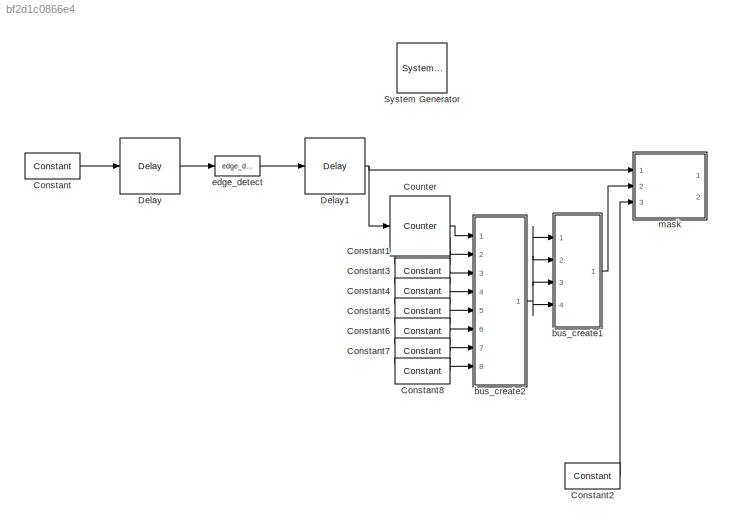
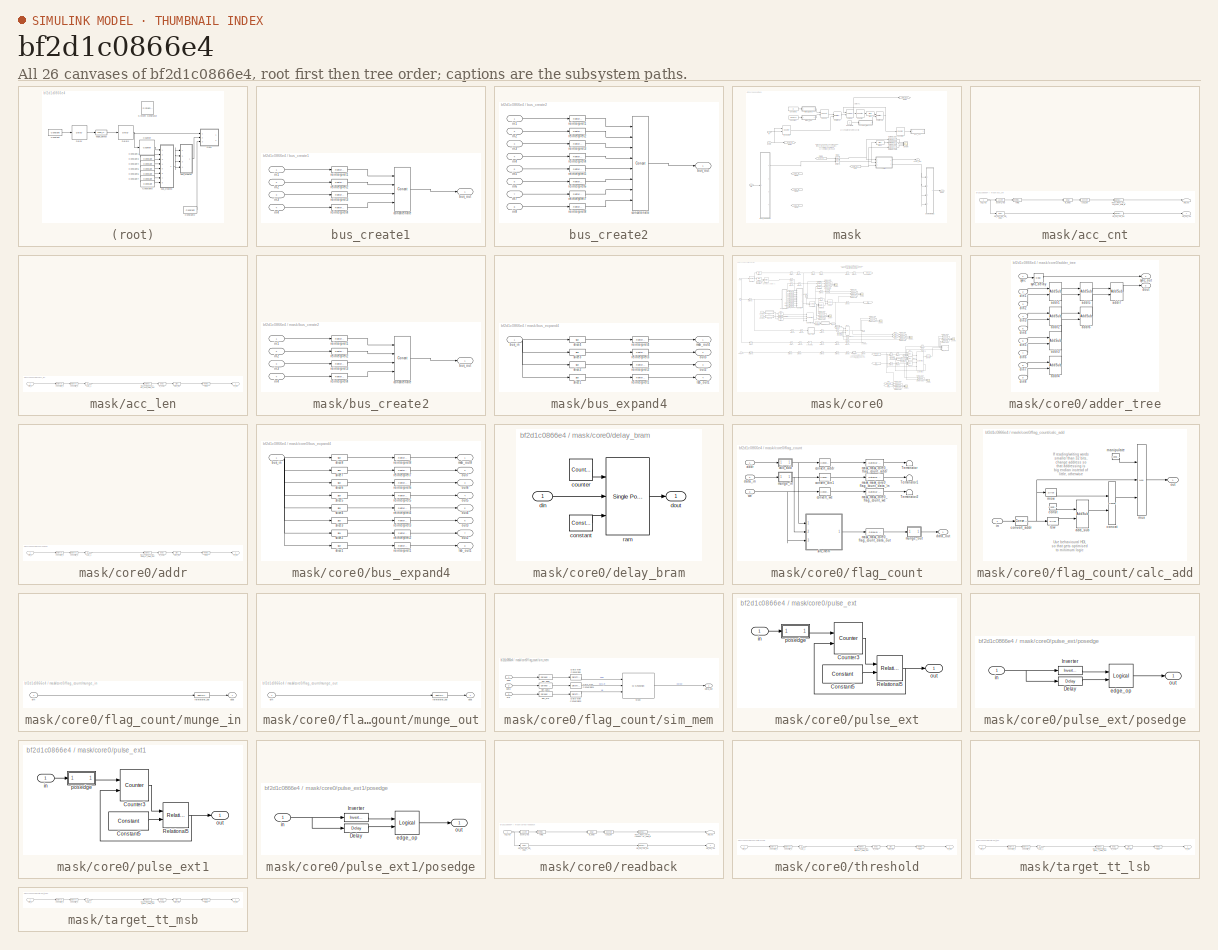
[diagram: thumbnail index - all 26 canvases of the model, root first then tree order]
MODEL slx_bf2d1c0866e4
KIND model
CONFIG AbsTol = auto
CONFIG EnableMultiTasking = off
CONFIG FixedStep = auto
CONFIG MaxStep = auto
CONFIG MinStep = auto
CONFIG RelTol = 1e-3
CONFIG SampleTimeConstraint = Unconstrained
CONFIG Solver = VariableStepAuto
CONFIG SolverName = VariableStepAuto
CONFIG StartTime = 0.0
CONFIG StopTime = 512*16*12
BLOCK [Reference]  System Generator  REF=xbsIndex_r4/ System Generator
  AttributesFormatString = System\nGenerator
  Ports = []
  SourceBlock = xbsIndex_r4/ System Generator
  SourceType = Xilinx System Generator Block
  Tag = genX
  UserDataPersistent = on
BLOCK [Reference] Constant  REF=xbsIndex_r4/Constant
  Ports = [0, 1]
  SourceBlock = xbsIndex_r4/Constant
  SourceType = Xilinx Constant Block Block
BLOCK [Reference] Constant1  REF=xbsIndex_r4/Constant
  Ports = [0, 1]
  SourceBlock = xbsIndex_r4/Constant
  SourceType = Xilinx Constant Block Block
BLOCK [Reference] Constant2  REF=xbsIndex_r4/Constant
  Ports = [0, 1]
  SourceBlock = xbsIndex_r4/Constant
  SourceType = Xilinx Constant Block Block
BLOCK [Reference] Constant3  REF=xbsIndex_r4/Constant
  Ports = [0, 1]
  SourceBlock = xbsIndex_r4/Constant
  SourceType = Xilinx Constant Block Block
BLOCK [Reference] Constant4  REF=xbsIndex_r4/Constant
  Ports = [0, 1]
  SourceBlock = xbsIndex_r4/Constant
  SourceType = Xilinx Constant Block Block
BLOCK [Reference] Constant5  REF=xbsIndex_r4/Constant
  Ports = [0, 1]
  SourceBlock = xbsIndex_r4/Constant
  SourceType = Xilinx Constant Block Block
BLOCK [Reference] Constant6  REF=xbsIndex_r4/Constant
  Ports = [0, 1]
  SourceBlock = xbsIndex_r4/Constant
  SourceType = Xilinx Constant Block Block
BLOCK [Reference] Constant7  REF=xbsIndex_r4/Constant
  Ports = [0, 1]
  SourceBlock = xbsIndex_r4/Constant
  SourceType = Xilinx Constant Block Block
BLOCK [Reference] Constant8  REF=xbsIndex_r4/Constant
  Ports = [0, 1]
  SourceBlock = xbsIndex_r4/Constant
  SourceType = Xilinx Constant Block Block
BLOCK [Reference] Counter  REF=xbsIndex_r4/Counter
  Ports = [1, 1]
  SourceBlock = xbsIndex_r4/Counter
  SourceType = Xilinx Counter Block
BLOCK [Reference] Delay  REF=xbsIndex_r4/Delay
  Ports = [1, 1]
  SourceBlock = xbsIndex_r4/Delay
  SourceType = Xilinx Delay Block
BLOCK [Reference] Delay1  REF=xbsIndex_r4/Delay
  Ports = [1, 1]
  SourceBlock = xbsIndex_r4/Delay
  SourceType = Xilinx Delay Block
BLOCK [SubSystem] bus_create1
  AncestorBlock = casper_library_flow_control/bus_create
  Ports = [4, 1]
  RequestExecContextInheritance = off
  UserDataPersistent = on
BLOCK [Outport] bus_create1/bus_out
  IconDisplay = Port number
BLOCK [Reference] bus_create1/concatenate  REF=xbsIndex_r4/Concat
  Ports = [4, 1]
  SourceBlock = xbsIndex_r4/Concat
  SourceType = Xilinx Bus Concatenator Block
BLOCK [Inport] bus_create1/in1
  IconDisplay = Port number
BLOCK [Inport] bus_create1/in2
  IconDisplay = Port number
  Port = 2
BLOCK [Inport] bus_create1/in3
  IconDisplay = Port number
  Port = 3
BLOCK [Inport] bus_create1/in4
  IconDisplay = Port number
  Port = 4
BLOCK [Reference] bus_create1/reinterpret1  REF=xbsIndex_r4/Reinterpret
  Ports = [1, 1]
  SourceBlock = xbsIndex_r4/Reinterpret
  SourceType = Xilinx Type Reinterpreter Block
BLOCK [Reference] bus_create1/reinterpret2  REF=xbsIndex_r4/Reinterpret
  Ports = [1, 1]
  SourceBlock = xbsIndex_r4/Reinterpret
  SourceType = Xilinx Type Reinterpreter Block
BLOCK [Reference] bus_create1/reinterpret3  REF=xbsIndex_r4/Reinterpret
  Ports = [1, 1]
  SourceBlock = xbsIndex_r4/Reinterpret
  SourceType = Xilinx Type Reinterpreter Block
BLOCK [Reference] bus_create1/reinterpret4  REF=xbsIndex_r4/Reinterpret
  Ports = [1, 1]
  SourceBlock = xbsIndex_r4/Reinterpret
  SourceType = Xilinx Type Reinterpreter Block
BLOCK [SubSystem] bus_create2
  AncestorBlock = casper_library_flow_control/bus_create
  Ports = [8, 1]
  RequestExecContextInheritance = off
  UserDataPersistent = on
BLOCK [Outport] bus_create2/bus_out
  IconDisplay = Port number
BLOCK [Reference] bus_create2/concatenate  REF=xbsIndex_r4/Concat
  Ports = [8, 1]
  SourceBlock = xbsIndex_r4/Concat
  SourceType = Xilinx Bus Concatenator Block
BLOCK [Inport] bus_create2/in1
  IconDisplay = Port number
BLOCK [Inport] bus_create2/in2
  IconDisplay = Port number
  Port = 2
BLOCK [Inport] bus_create2/in3
  IconDisplay = Port number
  Port = 3
BLOCK [Inport] bus_create2/in4
  IconDisplay = Port number
  Port = 4
BLOCK [Inport] bus_create2/in5
  IconDisplay = Port number
  Port = 5
BLOCK [Inport] bus_create2/in6
  IconDisplay = Port number
  Port = 6
BLOCK [Inport] bus_create2/in7
  IconDisplay = Port number
  Port = 7
BLOCK [Inport] bus_create2/in8
  IconDisplay = Port number
  Port = 8
BLOCK [Reference] bus_create2/reinterpret1  REF=xbsIndex_r4/Reinterpret
  Ports = [1, 1]
  SourceBlock = xbsIndex_r4/Reinterpret
  SourceType = Xilinx Type Reinterpreter Block
BLOCK [Reference] bus_create2/reinterpret2  REF=xbsIndex_r4/Reinterpret
  Ports = [1, 1]
  SourceBlock = xbsIndex_r4/Reinterpret
  SourceType = Xilinx Type Reinterpreter Block
BLOCK [Reference] bus_create2/reinterpret3  REF=xbsIndex_r4/Reinterpret
  Ports = [1, 1]
  SourceBlock = xbsIndex_r4/Reinterpret
  SourceType = Xilinx Type Reinterpreter Block
BLOCK [Reference] bus_create2/reinterpret4  REF=xbsIndex_r4/Reinterpret
  Ports = [1, 1]
  SourceBlock = xbsIndex_r4/Reinterpret
  SourceType = Xilinx Type Reinterpreter Block
BLOCK [Reference] bus_create2/reinterpret5  REF=xbsIndex_r4/Reinterpret
  Ports = [1, 1]
  SourceBlock = xbsIndex_r4/Reinterpret
  SourceType = Xilinx Type Reinterpreter Block
BLOCK [Reference] bus_create2/reinterpret6  REF=xbsIndex_r4/Reinterpret
  Ports = [1, 1]
  SourceBlock = xbsIndex_r4/Reinterpret
  SourceType = Xilinx Type Reinterpreter Block
BLOCK [Reference] bus_create2/reinterpret7  REF=xbsIndex_r4/Reinterpret
  Ports = [1, 1]
  SourceBlock = xbsIndex_r4/Reinterpret
  SourceType = Xilinx Type Reinterpreter Block
BLOCK [Reference] bus_create2/reinterpret8  REF=xbsIndex_r4/Reinterpret
  Ports = [1, 1]
  SourceBlock = xbsIndex_r4/Reinterpret
  SourceType = Xilinx Type Reinterpreter Block
BLOCK [Reference] edge_detect  REF=casper_library_misc/edge_detect  (lib defined in mdl_357510c33b49, mdl_57b5f564ae26, +4 more)
  AttributesFormatString = rising edges\nactive high
  Ports = [1, 1]
  SourceBlock = casper_library_misc/edge_detect
  SourceProductName = CASPER DSP Blockset
  SourceType = edge_detect
  UserDataPersistent = on
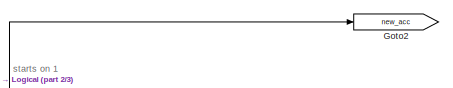
[diagram: mask - part 1/3, top right region]
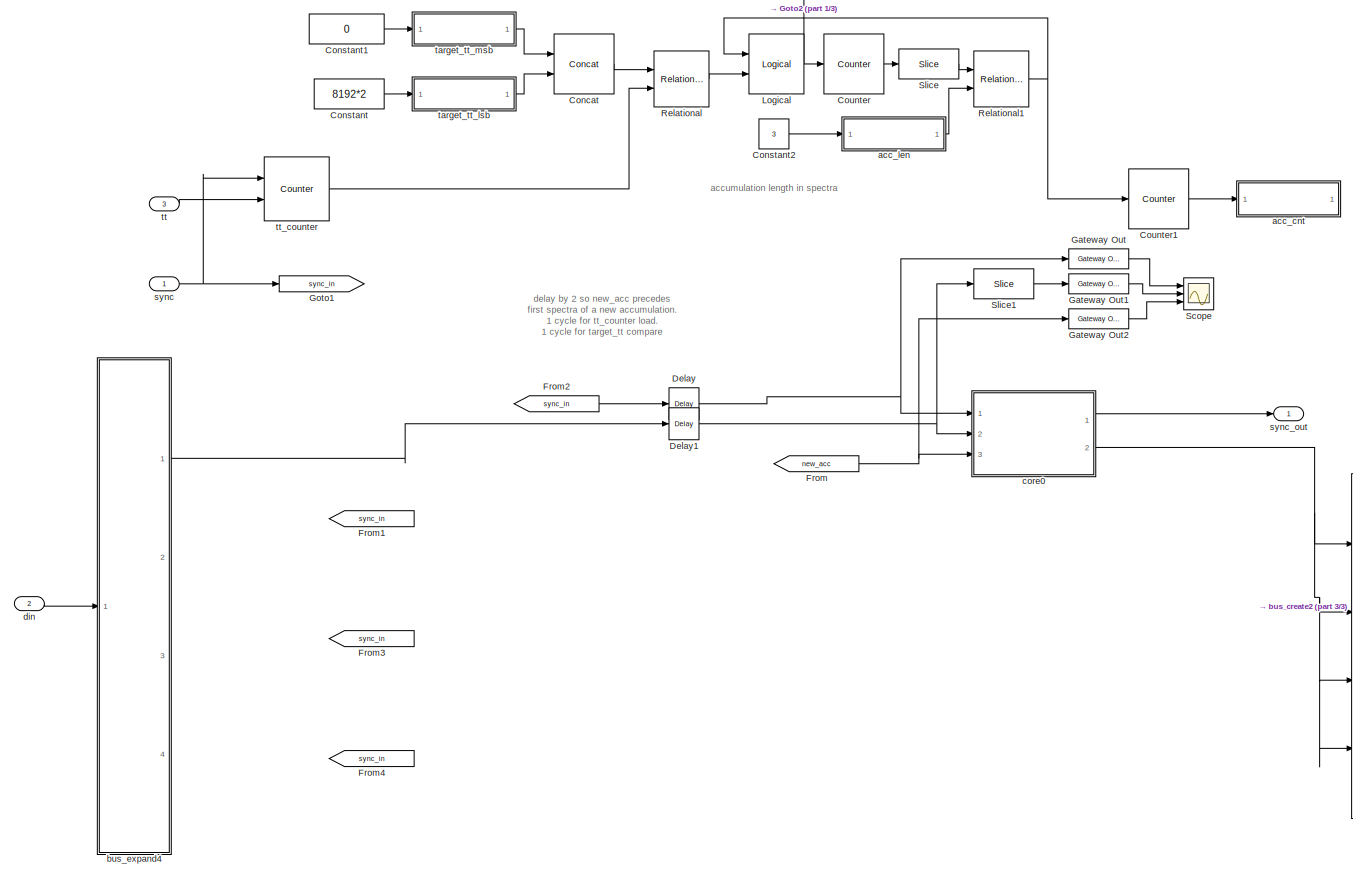
[diagram: mask - part 2/3, most of the canvas]
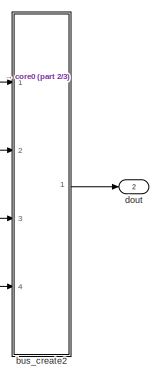
[diagram: mask - part 3/3, bottom right region]
BLOCK [SubSystem] mask
  Ports = [3, 2]
  RequestExecContextInheritance = off
BLOCK [Reference] mask/Concat  REF=xbsIndex_r4/Concat
  Ports = [2, 1]
  SourceBlock = xbsIndex_r4/Concat
  SourceType = Xilinx Bus Concatenator Block
BLOCK [Constant] mask/Constant
  Value = 8192*2
BLOCK [Constant] mask/Constant1
  Value = 0
BLOCK [Constant] mask/Constant2
  Value = 3
BLOCK [Reference] mask/Counter  REF=xbsIndex_r4/Counter
  Ports = [1, 1]
  SourceBlock = xbsIndex_r4/Counter
  SourceType = Xilinx Counter Block
BLOCK [Reference] mask/Counter1  REF=xbsIndex_r4/Counter
  Ports = [1, 1]
  SourceBlock = xbsIndex_r4/Counter
  SourceType = Xilinx Counter Block
BLOCK [Reference] mask/Delay  REF=xbsIndex_r4/Delay
  Ports = [1, 1]
  SourceBlock = xbsIndex_r4/Delay
  SourceType = Xilinx Delay Block
BLOCK [Reference] mask/Delay1  REF=xbsIndex_r4/Delay
  Ports = [1, 1]
  SourceBlock = xbsIndex_r4/Delay
  SourceType = Xilinx Delay Block
BLOCK [From] mask/From
  GotoTag = new_acc
BLOCK [From] mask/From1
  GotoTag = sync_in
BLOCK [From] mask/From2
  GotoTag = sync_in
BLOCK [From] mask/From3
  GotoTag = sync_in
BLOCK [From] mask/From4
  GotoTag = sync_in
BLOCK [Reference] mask/Gateway Out  REF=xbsIndex_r4/Gateway Out
  Commented = on
  Ports = [1, 1]
  SourceBlock = xbsIndex_r4/Gateway Out
  SourceType = Xilinx Gateway Out Block
BLOCK [Reference] mask/Gateway Out1  REF=xbsIndex_r4/Gateway Out
  Commented = on
  Ports = [1, 1]
  SourceBlock = xbsIndex_r4/Gateway Out
  SourceType = Xilinx Gateway Out Block
BLOCK [Reference] mask/Gateway Out2  REF=xbsIndex_r4/Gateway Out
  Commented = on
  Ports = [1, 1]
  SourceBlock = xbsIndex_r4/Gateway Out
  SourceType = Xilinx Gateway Out Block
BLOCK [Goto] mask/Goto1
  GotoTag = sync_in
BLOCK [Goto] mask/Goto2
  GotoTag = new_acc
BLOCK [Reference] mask/Logical  REF=xbsIndex_r4/Logical
  Ports = [2, 1]
  SourceBlock = xbsIndex_r4/Logical
  SourceType = Xilinx Logical Block Block
BLOCK [Reference] mask/Relational  REF=xbsIndex_r4/Relational
  Ports = [2, 1]
  SourceBlock = xbsIndex_r4/Relational
  SourceType = Xilinx Arithmetic Relational Operator Block
BLOCK [Reference] mask/Relational1  REF=xbsIndex_r4/Relational
  Ports = [2, 1]
  SourceBlock = xbsIndex_r4/Relational
  SourceType = Xilinx Arithmetic Relational Operator Block
BLOCK [Scope] mask/Scope
  Commented = on
  Floating = off
  NumInputPorts = 3
  Ports = [3]
  ScopeSpecificationString = Simulink.scopes.TimeScopeBlockCfg('CurrentConfiguration', extmgr.ConfigurationSet(extmgr.Configuration('Core','General UI',true),extmgr.Configuration('Core','Source UI',true),extmgr.Configuration('Sources','WiredSimulink',true),extmgr.Configuration('Visuals','Time Domain',true,'SerializedDisplays',{struct('MinYLimReal','-0.125','MaxYLimReal','1.125','YLabelReal','','MinYLimMag','0.00000','MaxYLimM...<+2798ch>
BLOCK [Reference] mask/Slice  REF=xbsIndex_r4/Slice
  Ports = [1, 1]
  SourceBlock = xbsIndex_r4/Slice
  SourceType = Xilinx Bit Slice Extractor Block
BLOCK [Reference] mask/Slice1  REF=xbsIndex_r4/Slice
  Commented = on
  Ports = [1, 1]
  SourceBlock = xbsIndex_r4/Slice
  SourceType = Xilinx Bit Slice Extractor Block
BLOCK [SubSystem] mask/acc_cnt
  AncestorBlock = xps_library/Memory/software_register
  AttributesFormatString = 1output:uf32.0 = 32 bits
  Ports = [1, 1]
  RequestExecContextInheritance = off
  Tag = xps:sw_reg
BLOCK [Reference] mask/acc_cnt/assert_reg  REF=xbsIndex_r4/Assert
  Ports = [1, 1]
  SourceBlock = xbsIndex_r4/Assert
  SourceType = Xilinx Assert Block
BLOCK [Reference] mask/acc_cnt/cast_gw  REF=xbsIndex_r4/Convert
  Ports = [1, 1]
  SourceBlock = xbsIndex_r4/Convert
  SourceType = Xilinx Type Converter Block
BLOCK [Reference] mask/acc_cnt/io_delay  REF=xbsIndex_r4/Delay
  Ports = [1, 1]
  SourceBlock = xbsIndex_r4/Delay
  SourceType = Xilinx Delay Block
BLOCK [Reference] mask/acc_cnt/mask_mask_acc_cnt_user_data_in  REF=xbsIndex_r4/Gateway Out
  Ports = [1, 1]
  SourceBlock = xbsIndex_r4/Gateway Out
  SourceType = Xilinx Gateway Out Block
BLOCK [Inport] mask/acc_cnt/out_reg
  IconDisplay = Port number
BLOCK [Reference] mask/acc_cnt/reint1  REF=xbsIndex_r4/Reinterpret
  Ports = [1, 1]
  SourceBlock = xbsIndex_r4/Reinterpret
  SourceType = Xilinx Type Reinterpreter Block
BLOCK [Terminator] mask/acc_cnt/sim_out
BLOCK [Outport] mask/acc_cnt/sim_out_reg
  IconDisplay = Port number
BLOCK [Reference] mask/acc_cnt/sim_out_reg_gw  REF=xbsIndex_r4/Gateway Out
  Ports = [1, 1]
  SourceBlock = xbsIndex_r4/Gateway Out
  SourceType = Xilinx Gateway Out Block
BLOCK [Reference] mask/acc_cnt/sim_out_reg_sim_delay  REF=xbsIndex_r4/Delay
  Ports = [1, 1]
  SourceBlock = xbsIndex_r4/Delay
  SourceType = Xilinx Delay Block
BLOCK [SubSystem] mask/acc_len
  AncestorBlock = xps_library/Memory/software_register
  AttributesFormatString = 1input:uf32.0 = 32 bits
  Ports = [1, 1]
  RequestExecContextInheritance = off
  Tag = xps:sw_reg
BLOCK [DataTypeConversion] mask/acc_len/convert1_1
  LockScale = on
  OutDataTypeStr = fixdt('ufix32_En0')
  RndMeth = Floor
  SaturateOnIntegerOverflow = off
BLOCK [DataTypeConversion] mask/acc_len/convert2_1
  ConvertRealWorld = Stored Integer (SI)
  LockScale = on
  OutDataTypeStr = fixdt('ufix32_En0')
  RndMeth = Floor
  SaturateOnIntegerOverflow = off
BLOCK [Gain] mask/acc_len/gain_1
  OutDataTypeStr = Inherit: Inherit via internal rule
  ParamDataTypeStr = Inherit: Inherit via internal rule
  SaturateOnIntegerOverflow = off
BLOCK [Outport] mask/acc_len/in_reg
  IconDisplay = Port number
BLOCK [Reference] mask/acc_len/io_delay  REF=xbsIndex_r4/Delay
  Ports = [1, 1]
  SourceBlock = xbsIndex_r4/Delay
  SourceType = Xilinx Delay Block
BLOCK [Reference] mask/acc_len/mask_mask_acc_len_user_data_out  REF=xbsIndex_r4/Gateway In
  Ports = [1, 1]
  SourceBlock = xbsIndex_r4/Gateway In
  SourceType = Xilinx Gateway In Block
BLOCK [Reference] mask/acc_len/reint1  REF=xbsIndex_r4/Reinterpret
  Ports = [1, 1]
  SourceBlock = xbsIndex_r4/Reinterpret
  SourceType = Xilinx Type Reinterpreter Block
BLOCK [Inport] mask/acc_len/sim_1
  IconDisplay = Port number
BLOCK [Reference] mask/acc_len/slice_reg  REF=xbsIndex_r4/Slice
  Ports = [1, 1]
  SourceBlock = xbsIndex_r4/Slice
  SourceType = Xilinx Bit Slice Extractor Block
BLOCK [SubSystem] mask/bus_create2
  AncestorBlock = casper_library_flow_control/bus_create
  Ports = [4, 1]
  RequestExecContextInheritance = off
  UserDataPersistent = on
BLOCK [Outport] mask/bus_create2/bus_out
  IconDisplay = Port number
BLOCK [Reference] mask/bus_create2/concatenate  REF=xbsIndex_r4/Concat
  Ports = [4, 1]
  SourceBlock = xbsIndex_r4/Concat
  SourceType = Xilinx Bus Concatenator Block
BLOCK [Inport] mask/bus_create2/in1
  IconDisplay = Port number
BLOCK [Inport] mask/bus_create2/in2
  IconDisplay = Port number
  Port = 2
BLOCK [Inport] mask/bus_create2/in3
  IconDisplay = Port number
  Port = 3
BLOCK [Inport] mask/bus_create2/in4
  IconDisplay = Port number
  Port = 4
BLOCK [Reference] mask/bus_create2/reinterpret1  REF=xbsIndex_r4/Reinterpret
  Ports = [1, 1]
  SourceBlock = xbsIndex_r4/Reinterpret
  SourceType = Xilinx Type Reinterpreter Block
BLOCK [Reference] mask/bus_create2/reinterpret2  REF=xbsIndex_r4/Reinterpret
  Ports = [1, 1]
  SourceBlock = xbsIndex_r4/Reinterpret
  SourceType = Xilinx Type Reinterpreter Block
BLOCK [Reference] mask/bus_create2/reinterpret3  REF=xbsIndex_r4/Reinterpret
  Ports = [1, 1]
  SourceBlock = xbsIndex_r4/Reinterpret
  SourceType = Xilinx Type Reinterpreter Block
BLOCK [Reference] mask/bus_create2/reinterpret4  REF=xbsIndex_r4/Reinterpret
  Ports = [1, 1]
  SourceBlock = xbsIndex_r4/Reinterpret
  SourceType = Xilinx Type Reinterpreter Block
BLOCK [SubSystem] mask/bus_expand4
  AncestorBlock = casper_library_flow_control/bus_expand
  AttributesFormatString = 4 outputs
  Ports = [1, 4]
  RequestExecContextInheritance = off
  UserDataPersistent = on
BLOCK [Inport] mask/bus_expand4/bus_in
  IconDisplay = Port number
BLOCK [Outport] mask/bus_expand4/lsb_out1
  IconDisplay = Port number
  Port = 4
BLOCK [Outport] mask/bus_expand4/msb_out4
  IconDisplay = Port number
BLOCK [Outport] mask/bus_expand4/out2
  IconDisplay = Port number
  Port = 3
BLOCK [Outport] mask/bus_expand4/out3
  IconDisplay = Port number
  Port = 2
BLOCK [Reference] mask/bus_expand4/reinterpret1  REF=xbsIndex_r4/Reinterpret
  Ports = [1, 1]
  SourceBlock = xbsIndex_r4/Reinterpret
  SourceType = Xilinx Type Reinterpreter Block
BLOCK [Reference] mask/bus_expand4/reinterpret2  REF=xbsIndex_r4/Reinterpret
  Ports = [1, 1]
  SourceBlock = xbsIndex_r4/Reinterpret
  SourceType = Xilinx Type Reinterpreter Block
BLOCK [Reference] mask/bus_expand4/reinterpret3  REF=xbsIndex_r4/Reinterpret
  Ports = [1, 1]
  SourceBlock = xbsIndex_r4/Reinterpret
  SourceType = Xilinx Type Reinterpreter Block
BLOCK [Reference] mask/bus_expand4/reinterpret4  REF=xbsIndex_r4/Reinterpret
  Ports = [1, 1]
  SourceBlock = xbsIndex_r4/Reinterpret
  SourceType = Xilinx Type Reinterpreter Block
BLOCK [Reference] mask/bus_expand4/slice1  REF=xbsIndex_r4/Slice
  Ports = [1, 1]
  SourceBlock = xbsIndex_r4/Slice
  SourceType = Xilinx Bit Slice Extractor Block
BLOCK [Reference] mask/bus_expand4/slice2  REF=xbsIndex_r4/Slice
  Ports = [1, 1]
  SourceBlock = xbsIndex_r4/Slice
  SourceType = Xilinx Bit Slice Extractor Block
BLOCK [Reference] mask/bus_expand4/slice3  REF=xbsIndex_r4/Slice
  Ports = [1, 1]
  SourceBlock = xbsIndex_r4/Slice
  SourceType = Xilinx Bit Slice Extractor Block
BLOCK [Reference] mask/bus_expand4/slice4  REF=xbsIndex_r4/Slice
  Ports = [1, 1]
  SourceBlock = xbsIndex_r4/Slice
  SourceType = Xilinx Bit Slice Extractor Block
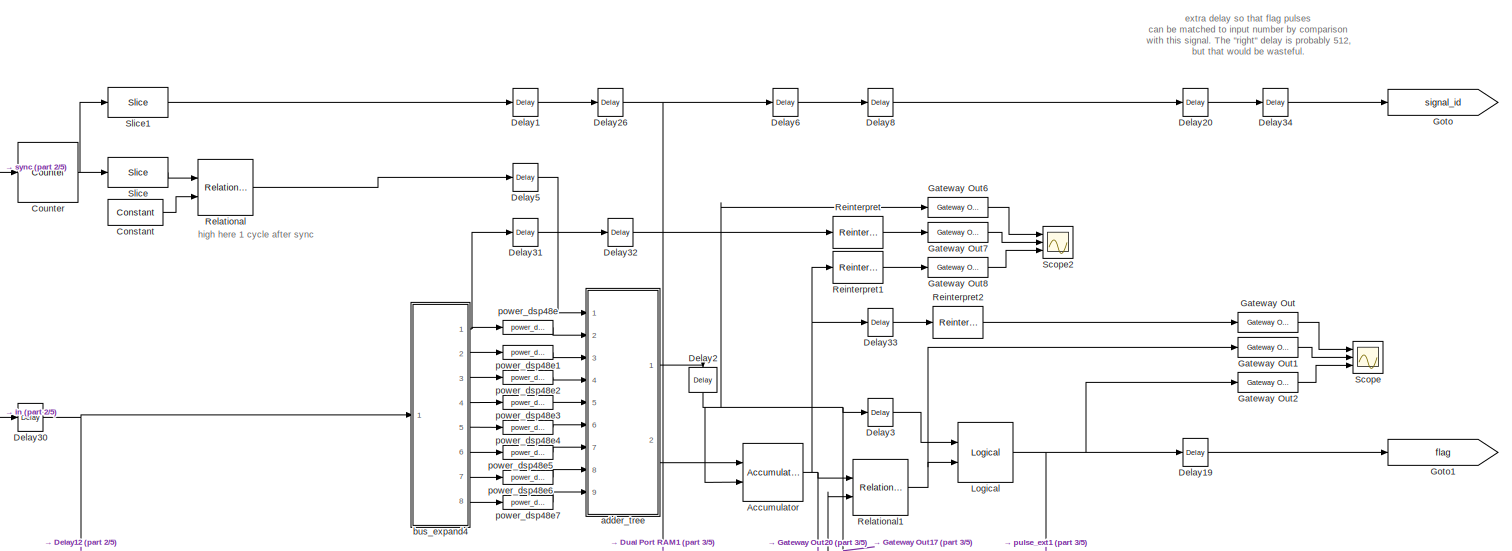
[diagram: mask/core0 - part 1/5, top center region]
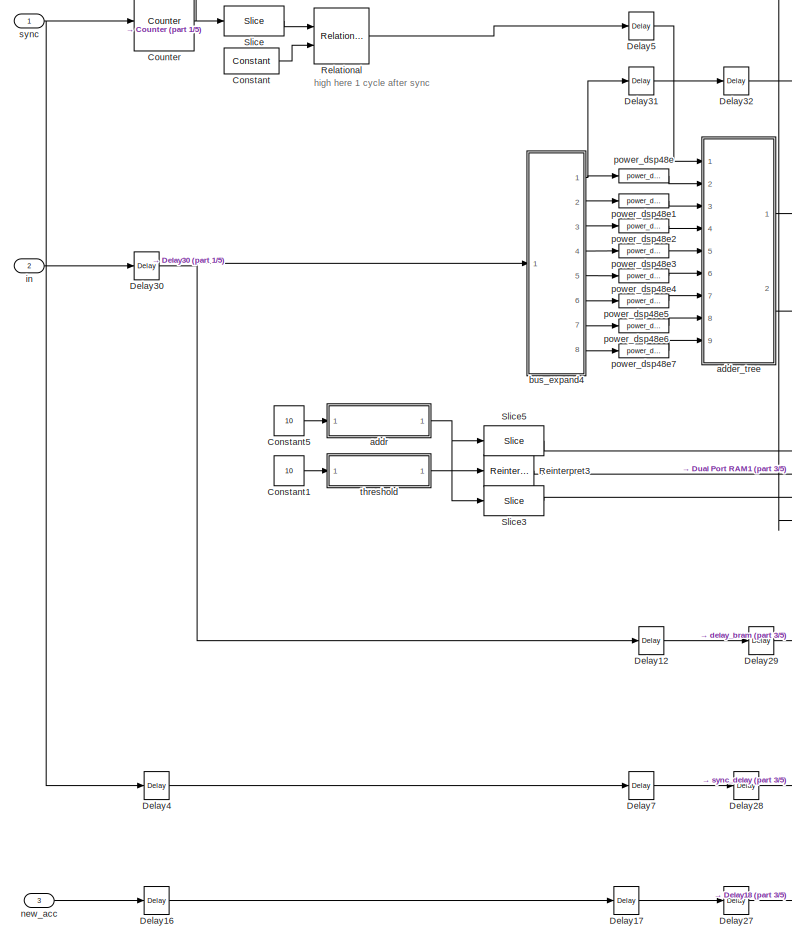
[diagram: mask/core0 - part 2/5, middle left region]
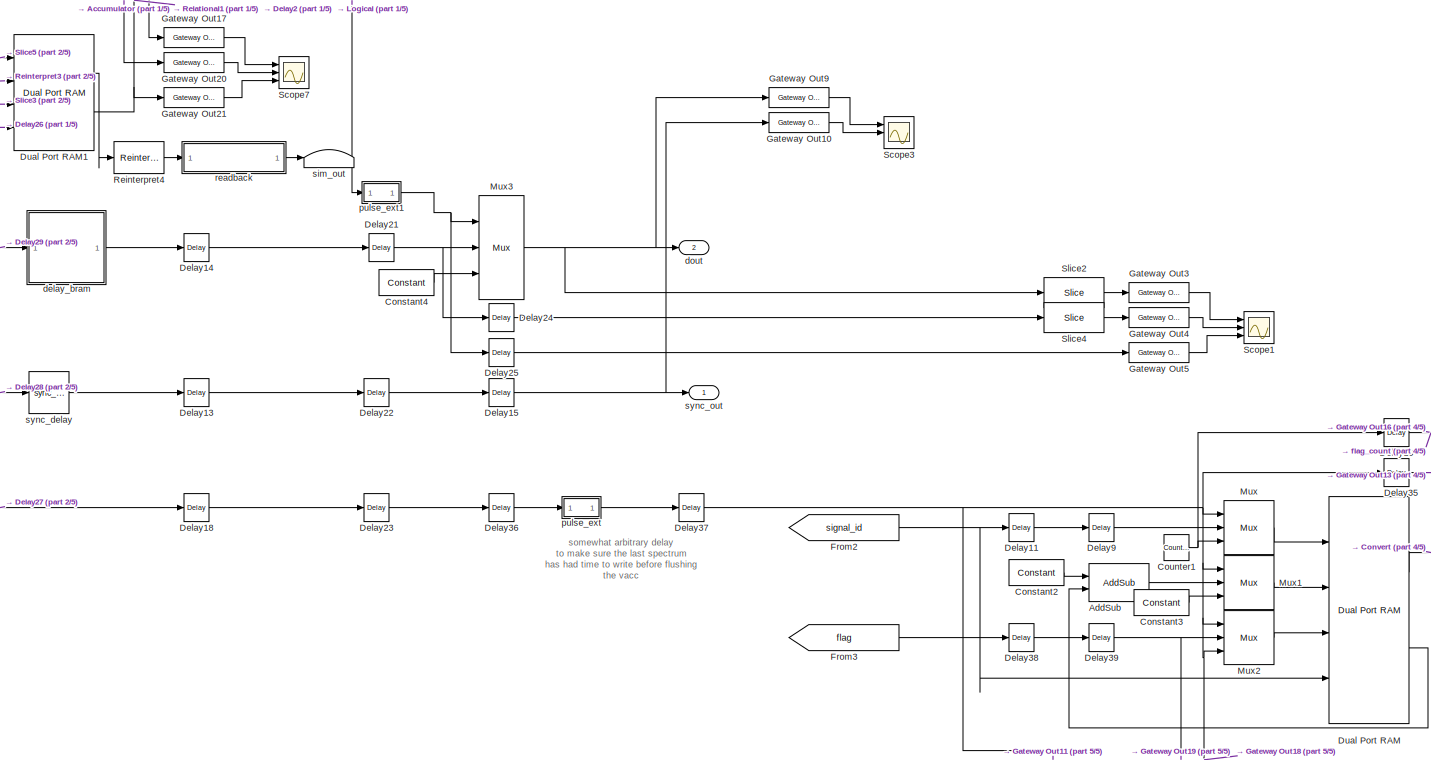
[diagram: mask/core0 - part 3/5, central region]
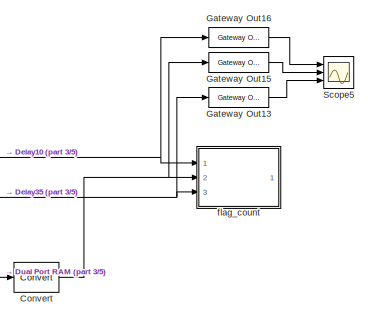
[diagram: mask/core0 - part 4/5, middle right region]
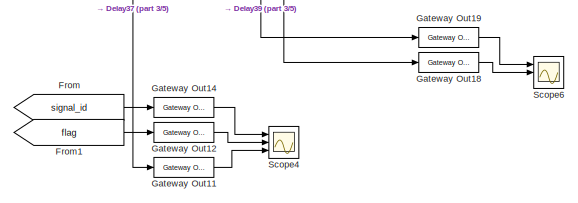
[diagram: mask/core0 - part 5/5, bottom right region]
BLOCK [SubSystem] mask/core0
  Ports = [3, 2]
  RequestExecContextInheritance = off
BLOCK [Reference] mask/core0/Accumulator  REF=xbsIndex_r4/Accumulator
  Ports = [2, 1]
  SourceBlock = xbsIndex_r4/Accumulator
  SourceType = Xilinx Accumulator Block
BLOCK [Reference] mask/core0/AddSub  REF=xbsIndex_r4/AddSub
  Ports = [2, 1]
  SourceBlock = xbsIndex_r4/AddSub
  SourceType = Xilinx Adder/Subtracter Block
BLOCK [Reference] mask/core0/Constant  REF=xbsIndex_r4/Constant
  Ports = [0, 1]
  SourceBlock = xbsIndex_r4/Constant
  SourceType = Xilinx Constant Block Block
BLOCK [Constant] mask/core0/Constant1
  Value = 10
BLOCK [Reference] mask/core0/Constant2  REF=xbsIndex_r4/Constant
  Ports = [0, 1]
  SourceBlock = xbsIndex_r4/Constant
  SourceType = Xilinx Constant Block Block
BLOCK [Reference] mask/core0/Constant3  REF=xbsIndex_r4/Constant
  Ports = [0, 1]
  SourceBlock = xbsIndex_r4/Constant
  SourceType = Xilinx Constant Block Block
BLOCK [Reference] mask/core0/Constant4  REF=xbsIndex_r4/Constant
  Ports = [0, 1]
  SourceBlock = xbsIndex_r4/Constant
  SourceType = Xilinx Constant Block Block
BLOCK [Constant] mask/core0/Constant5
  Value = 10
BLOCK [Reference] mask/core0/Convert  REF=xbsIndex_r4/Convert
  Ports = [1, 1]
  SourceBlock = xbsIndex_r4/Convert
  SourceType = Xilinx Type Converter Block
BLOCK [Reference] mask/core0/Counter  REF=xbsIndex_r4/Counter
  Ports = [1, 1]
  SourceBlock = xbsIndex_r4/Counter
  SourceType = Xilinx Counter Block
BLOCK [Reference] mask/core0/Counter1  REF=xbsIndex_r4/Counter
  Ports = [0, 1]
  SourceBlock = xbsIndex_r4/Counter
  SourceType = Xilinx Counter Block
BLOCK [Reference] mask/core0/Delay1  REF=xbsIndex_r4/Delay
  Ports = [1, 1]
  SourceBlock = xbsIndex_r4/Delay
  SourceType = Xilinx Delay Block
BLOCK [Reference] mask/core0/Delay10  REF=xbsIndex_r4/Delay
  Ports = [1, 1]
  SourceBlock = xbsIndex_r4/Delay
  SourceType = Xilinx Delay Block
BLOCK [Reference] mask/core0/Delay11  REF=xbsIndex_r4/Delay
  Ports = [1, 1]
  SourceBlock = xbsIndex_r4/Delay
  SourceType = Xilinx Delay Block
BLOCK [Reference] mask/core0/Delay12  REF=xbsIndex_r4/Delay
  Ports = [1, 1]
  SourceBlock = xbsIndex_r4/Delay
  SourceType = Xilinx Delay Block
BLOCK [Reference] mask/core0/Delay13  REF=xbsIndex_r4/Delay
  Ports = [1, 1]
  SourceBlock = xbsIndex_r4/Delay
  SourceType = Xilinx Delay Block
BLOCK [Reference] mask/core0/Delay14  REF=xbsIndex_r4/Delay
  Ports = [1, 1]
  SourceBlock = xbsIndex_r4/Delay
  SourceType = Xilinx Delay Block
BLOCK [Reference] mask/core0/Delay15  REF=xbsIndex_r4/Delay
  Ports = [1, 1]
  SourceBlock = xbsIndex_r4/Delay
  SourceType = Xilinx Delay Block
BLOCK [Reference] mask/core0/Delay16  REF=xbsIndex_r4/Delay
  Ports = [1, 1]
  SourceBlock = xbsIndex_r4/Delay
  SourceType = Xilinx Delay Block
BLOCK [Reference] mask/core0/Delay17  REF=xbsIndex_r4/Delay
  Ports = [1, 1]
  SourceBlock = xbsIndex_r4/Delay
  SourceType = Xilinx Delay Block
BLOCK [Reference] mask/core0/Delay18  REF=xbsIndex_r4/Delay
  Ports = [1, 1]
  SourceBlock = xbsIndex_r4/Delay
  SourceType = Xilinx Delay Block
BLOCK [Reference] mask/core0/Delay19  REF=xbsIndex_r4/Delay
  Ports = [1, 1]
  SourceBlock = xbsIndex_r4/Delay
  SourceType = Xilinx Delay Block
BLOCK [Reference] mask/core0/Delay2  REF=xbsIndex_r4/Delay
  Ports = [1, 1]
  SourceBlock = xbsIndex_r4/Delay
  SourceType = Xilinx Delay Block
BLOCK [Reference] mask/core0/Delay20  REF=xbsIndex_r4/Delay
  Ports = [1, 1]
  SourceBlock = xbsIndex_r4/Delay
  SourceType = Xilinx Delay Block
BLOCK [Reference] mask/core0/Delay21  REF=xbsIndex_r4/Delay
  Ports = [1, 1]
  SourceBlock = xbsIndex_r4/Delay
  SourceType = Xilinx Delay Block
BLOCK [Reference] mask/core0/Delay22  REF=xbsIndex_r4/Delay
  Ports = [1, 1]
  SourceBlock = xbsIndex_r4/Delay
  SourceType = Xilinx Delay Block
BLOCK [Reference] mask/core0/Delay23  REF=xbsIndex_r4/Delay
  Ports = [1, 1]
  SourceBlock = xbsIndex_r4/Delay
  SourceType = Xilinx Delay Block
BLOCK [Reference] mask/core0/Delay24  REF=xbsIndex_r4/Delay
  Commented = on
  Ports = [1, 1]
  SourceBlock = xbsIndex_r4/Delay
  SourceType = Xilinx Delay Block
BLOCK [Reference] mask/core0/Delay25  REF=xbsIndex_r4/Delay
  Commented = on
  Ports = [1, 1]
  SourceBlock = xbsIndex_r4/Delay
  SourceType = Xilinx Delay Block
BLOCK [Reference] mask/core0/Delay26  REF=xbsIndex_r4/Delay
  Ports = [1, 1]
  SourceBlock = xbsIndex_r4/Delay
  SourceType = Xilinx Delay Block
BLOCK [Reference] mask/core0/Delay27  REF=xbsIndex_r4/Delay
  Ports = [1, 1]
  SourceBlock = xbsIndex_r4/Delay
  SourceType = Xilinx Delay Block
BLOCK [Reference] mask/core0/Delay28  REF=xbsIndex_r4/Delay
  Ports = [1, 1]
  SourceBlock = xbsIndex_r4/Delay
  SourceType = Xilinx Delay Block
BLOCK [Reference] mask/core0/Delay29  REF=xbsIndex_r4/Delay
  Ports = [1, 1]
  SourceBlock = xbsIndex_r4/Delay
  SourceType = Xilinx Delay Block
BLOCK [Reference] mask/core0/Delay3  REF=xbsIndex_r4/Delay
  Ports = [1, 1]
  SourceBlock = xbsIndex_r4/Delay
  SourceType = Xilinx Delay Block
BLOCK [Reference] mask/core0/Delay30  REF=xbsIndex_r4/Delay
  Ports = [1, 1]
  SourceBlock = xbsIndex_r4/Delay
  SourceType = Xilinx Delay Block
BLOCK [Reference] mask/core0/Delay31  REF=xbsIndex_r4/Delay
  Commented = on
  Ports = [1, 1]
  SourceBlock = xbsIndex_r4/Delay
  SourceType = Xilinx Delay Block
BLOCK [Reference] mask/core0/Delay32  REF=xbsIndex_r4/Delay
  Commented = on
  Ports = [1, 1]
  SourceBlock = xbsIndex_r4/Delay
  SourceType = Xilinx Delay Block
BLOCK [Reference] mask/core0/Delay33  REF=xbsIndex_r4/Delay
  Commented = on
  Ports = [1, 1]
  SourceBlock = xbsIndex_r4/Delay
  SourceType = Xilinx Delay Block
BLOCK [Reference] mask/core0/Delay34  REF=xbsIndex_r4/Delay
  Ports = [1, 1]
  SourceBlock = xbsIndex_r4/Delay
  SourceType = Xilinx Delay Block
BLOCK [Reference] mask/core0/Delay35  REF=xbsIndex_r4/Delay
  Ports = [1, 1]
  SourceBlock = xbsIndex_r4/Delay
  SourceType = Xilinx Delay Block
BLOCK [Reference] mask/core0/Delay36  REF=xbsIndex_r4/Delay
  Ports = [1, 1]
  SourceBlock = xbsIndex_r4/Delay
  SourceType = Xilinx Delay Block
BLOCK [Reference] mask/core0/Delay37  REF=xbsIndex_r4/Delay
  Ports = [1, 1]
  SourceBlock = xbsIndex_r4/Delay
  SourceType = Xilinx Delay Block
BLOCK [Reference] mask/core0/Delay38  REF=xbsIndex_r4/Delay
  Ports = [1, 1]
  SourceBlock = xbsIndex_r4/Delay
  SourceType = Xilinx Delay Block
BLOCK [Reference] mask/core0/Delay39  REF=xbsIndex_r4/Delay
  Ports = [1, 1]
  SourceBlock = xbsIndex_r4/Delay
  SourceType = Xilinx Delay Block
BLOCK [Reference] mask/core0/Delay4  REF=xbsIndex_r4/Delay
  Ports = [1, 1]
  SourceBlock = xbsIndex_r4/Delay
  SourceType = Xilinx Delay Block
BLOCK [Reference] mask/core0/Delay5  REF=xbsIndex_r4/Delay
  Ports = [1, 1]
  SourceBlock = xbsIndex_r4/Delay
  SourceType = Xilinx Delay Block
BLOCK [Reference] mask/core0/Delay6  REF=xbsIndex_r4/Delay
  Ports = [1, 1]
  SourceBlock = xbsIndex_r4/Delay
  SourceType = Xilinx Delay Block
BLOCK [Reference] mask/core0/Delay7  REF=xbsIndex_r4/Delay
  Ports = [1, 1]
  SourceBlock = xbsIndex_r4/Delay
  SourceType = Xilinx Delay Block
BLOCK [Reference] mask/core0/Delay8  REF=xbsIndex_r4/Delay
  Ports = [1, 1]
  SourceBlock = xbsIndex_r4/Delay
  SourceType = Xilinx Delay Block
BLOCK [Reference] mask/core0/Delay9  REF=xbsIndex_r4/Delay
  Ports = [1, 1]
  SourceBlock = xbsIndex_r4/Delay
  SourceType = Xilinx Delay Block
BLOCK [Reference] mask/core0/Dual Port RAM  REF=xbsIndex_r4/Dual Port RAM
  Ports = [4, 2]
  SourceBlock = xbsIndex_r4/Dual Port RAM
  SourceType = Xilinx Dual Port Random Access Memory Block
BLOCK [Reference] mask/core0/Dual Port RAM1  REF=xbsIndex_r4/Dual Port RAM
  Ports = [4, 2]
  SourceBlock = xbsIndex_r4/Dual Port RAM
  SourceType = Xilinx Dual Port Random Access Memory Block
BLOCK [From] mask/core0/From
  Commented = on
  GotoTag = signal_id
BLOCK [From] mask/core0/From1
  Commented = on
  GotoTag = flag
BLOCK [From] mask/core0/From2
  GotoTag = signal_id
BLOCK [From] mask/core0/From3
  GotoTag = flag
BLOCK [Reference] mask/core0/Gateway Out  REF=xbsIndex_r4/Gateway Out
  Commented = on
  Ports = [1, 1]
  SourceBlock = xbsIndex_r4/Gateway Out
  SourceType = Xilinx Gateway Out Block
BLOCK [Reference] mask/core0/Gateway Out1  REF=xbsIndex_r4/Gateway Out
  Commented = on
  Ports = [1, 1]
  SourceBlock = xbsIndex_r4/Gateway Out
  SourceType = Xilinx Gateway Out Block
BLOCK [Reference] mask/core0/Gateway Out10  REF=xbsIndex_r4/Gateway Out
  Commented = on
  Ports = [1, 1]
  SourceBlock = xbsIndex_r4/Gateway Out
  SourceType = Xilinx Gateway Out Block
BLOCK [Reference] mask/core0/Gateway Out11  REF=xbsIndex_r4/Gateway Out
  Commented = on
  Ports = [1, 1]
  SourceBlock = xbsIndex_r4/Gateway Out
  SourceType = Xilinx Gateway Out Block
BLOCK [Reference] mask/core0/Gateway Out12  REF=xbsIndex_r4/Gateway Out
  Commented = on
  Ports = [1, 1]
  SourceBlock = xbsIndex_r4/Gateway Out
  SourceType = Xilinx Gateway Out Block
BLOCK [Reference] mask/core0/Gateway Out13  REF=xbsIndex_r4/Gateway Out
  Commented = on
  Ports = [1, 1]
  SourceBlock = xbsIndex_r4/Gateway Out
  SourceType = Xilinx Gateway Out Block
BLOCK [Reference] mask/core0/Gateway Out14  REF=xbsIndex_r4/Gateway Out
  Commented = on
  Ports = [1, 1]
  SourceBlock = xbsIndex_r4/Gateway Out
  SourceType = Xilinx Gateway Out Block
BLOCK [Reference] mask/core0/Gateway Out15  REF=xbsIndex_r4/Gateway Out
  Commented = on
  Ports = [1, 1]
  SourceBlock = xbsIndex_r4/Gateway Out
  SourceType = Xilinx Gateway Out Block
BLOCK [Reference] mask/core0/Gateway Out16  REF=xbsIndex_r4/Gateway Out
  Commented = on
  Ports = [1, 1]
  SourceBlock = xbsIndex_r4/Gateway Out
  SourceType = Xilinx Gateway Out Block
BLOCK [Reference] mask/core0/Gateway Out17  REF=xbsIndex_r4/Gateway Out
  Commented = on
  Ports = [1, 1]
  SourceBlock = xbsIndex_r4/Gateway Out
  SourceType = Xilinx Gateway Out Block
BLOCK [Reference] mask/core0/Gateway Out18  REF=xbsIndex_r4/Gateway Out
  Commented = on
  Ports = [1, 1]
  SourceBlock = xbsIndex_r4/Gateway Out
  SourceType = Xilinx Gateway Out Block
BLOCK [Reference] mask/core0/Gateway Out19  REF=xbsIndex_r4/Gateway Out
  Commented = on
  Ports = [1, 1]
  SourceBlock = xbsIndex_r4/Gateway Out
  SourceType = Xilinx Gateway Out Block
BLOCK [Reference] mask/core0/Gateway Out2  REF=xbsIndex_r4/Gateway Out
  Commented = on
  Ports = [1, 1]
  SourceBlock = xbsIndex_r4/Gateway Out
  SourceType = Xilinx Gateway Out Block
BLOCK [Reference] mask/core0/Gateway Out20  REF=xbsIndex_r4/Gateway Out
  Commented = on
  Ports = [1, 1]
  SourceBlock = xbsIndex_r4/Gateway Out
  SourceType = Xilinx Gateway Out Block
BLOCK [Reference] mask/core0/Gateway Out21  REF=xbsIndex_r4/Gateway Out
  Commented = on
  Ports = [1, 1]
  SourceBlock = xbsIndex_r4/Gateway Out
  SourceType = Xilinx Gateway Out Block
BLOCK [Reference] mask/core0/Gateway Out3  REF=xbsIndex_r4/Gateway Out
  Commented = on
  Ports = [1, 1]
  SourceBlock = xbsIndex_r4/Gateway Out
  SourceType = Xilinx Gateway Out Block
BLOCK [Reference] mask/core0/Gateway Out4  REF=xbsIndex_r4/Gateway Out
  Commented = on
  Ports = [1, 1]
  SourceBlock = xbsIndex_r4/Gateway Out
  SourceType = Xilinx Gateway Out Block
BLOCK [Reference] mask/core0/Gateway Out5  REF=xbsIndex_r4/Gateway Out
  Commented = on
  Ports = [1, 1]
  SourceBlock = xbsIndex_r4/Gateway Out
  SourceType = Xilinx Gateway Out Block
BLOCK [Reference] mask/core0/Gateway Out6  REF=xbsIndex_r4/Gateway Out
  Commented = on
  Ports = [1, 1]
  SourceBlock = xbsIndex_r4/Gateway Out
  SourceType = Xilinx Gateway Out Block
BLOCK [Reference] mask/core0/Gateway Out7  REF=xbsIndex_r4/Gateway Out
  Commented = on
  Ports = [1, 1]
  SourceBlock = xbsIndex_r4/Gateway Out
  SourceType = Xilinx Gateway Out Block
BLOCK [Reference] mask/core0/Gateway Out8  REF=xbsIndex_r4/Gateway Out
  Commented = on
  Ports = [1, 1]
  SourceBlock = xbsIndex_r4/Gateway Out
  SourceType = Xilinx Gateway Out Block
BLOCK [Reference] mask/core0/Gateway Out9  REF=xbsIndex_r4/Gateway Out
  Commented = on
  Ports = [1, 1]
  SourceBlock = xbsIndex_r4/Gateway Out
  SourceType = Xilinx Gateway Out Block
BLOCK [Goto] mask/core0/Goto
  GotoTag = signal_id
BLOCK [Goto] mask/core0/Goto1
  GotoTag = flag
BLOCK [Reference] mask/core0/Logical  REF=xbsIndex_r4/Logical
  Ports = [2, 1]
  SourceBlock = xbsIndex_r4/Logical
  SourceType = Xilinx Logical Block Block
BLOCK [Reference] mask/core0/Mux  REF=xbsIndex_r4/Mux
  Ports = [3, 1]
  SourceBlock = xbsIndex_r4/Mux
  SourceType = Xilinx Bus Multiplexer Block
BLOCK [Reference] mask/core0/Mux1  REF=xbsIndex_r4/Mux
  Ports = [3, 1]
  SourceBlock = xbsIndex_r4/Mux
  SourceType = Xilinx Bus Multiplexer Block
BLOCK [Reference] mask/core0/Mux2  REF=xbsIndex_r4/Mux
  Ports = [3, 1]
  SourceBlock = xbsIndex_r4/Mux
  SourceType = Xilinx Bus Multiplexer Block
BLOCK [Reference] mask/core0/Mux3  REF=xbsIndex_r4/Mux
  Ports = [3, 1]
  SourceBlock = xbsIndex_r4/Mux
  SourceType = Xilinx Bus Multiplexer Block
BLOCK [Reference] mask/core0/Reinterpret  REF=xbsIndex_r4/Reinterpret
  Commented = on
  Ports = [1, 1]
  SourceBlock = xbsIndex_r4/Reinterpret
  SourceType = Xilinx Type Reinterpreter Block
BLOCK [Reference] mask/core0/Reinterpret1  REF=xbsIndex_r4/Reinterpret
  Commented = on
  Ports = [1, 1]
  SourceBlock = xbsIndex_r4/Reinterpret
  SourceType = Xilinx Type Reinterpreter Block
BLOCK [Reference] mask/core0/Reinterpret2  REF=xbsIndex_r4/Reinterpret
  Commented = on
  Ports = [1, 1]
  SourceBlock = xbsIndex_r4/Reinterpret
  SourceType = Xilinx Type Reinterpreter Block
BLOCK [Reference] mask/core0/Reinterpret3  REF=xbsIndex_r4/Reinterpret
  Ports = [1, 1]
  SourceBlock = xbsIndex_r4/Reinterpret
  SourceType = Xilinx Type Reinterpreter Block
BLOCK [Reference] mask/core0/Reinterpret4  REF=xbsIndex_r4/Reinterpret
  Ports = [1, 1]
  SourceBlock = xbsIndex_r4/Reinterpret
  SourceType = Xilinx Type Reinterpreter Block
BLOCK [Reference] mask/core0/Relational  REF=xbsIndex_r4/Relational
  Ports = [2, 1]
  SourceBlock = xbsIndex_r4/Relational
  SourceType = Xilinx Arithmetic Relational Operator Block
BLOCK [Reference] mask/core0/Relational1  REF=xbsIndex_r4/Relational
  Ports = [2, 1]
  SourceBlock = xbsIndex_r4/Relational
  SourceType = Xilinx Arithmetic Relational Operator Block
BLOCK [Scope] mask/core0/Scope
  Commented = on
  Floating = off
  NumInputPorts = 3
  Ports = [3]
  ScopeSpecificationString = Simulink.scopes.TimeScopeBlockCfg('CurrentConfiguration', extmgr.ConfigurationSet(extmgr.Configuration('Core','General UI',true),extmgr.Configuration('Core','Source UI',true),extmgr.Configuration('Sources','WiredSimulink',true,'DataLoggingVariableName','ScopeData1'),extmgr.Configuration('Visuals','Time Domain',true,'SerializedDisplays',{struct('MinYLimReal','178813184760.63574','MaxYLimReal','1788...<+2869ch>
BLOCK [Scope] mask/core0/Scope1
  Commented = on
  Floating = off
  NumInputPorts = 3
  Ports = [3]
  ScopeSpecificationString = Simulink.scopes.TimeScopeBlockCfg('CurrentConfiguration', extmgr.ConfigurationSet(extmgr.Configuration('Core','General UI',true),extmgr.Configuration('Core','Source UI',true),extmgr.Configuration('Sources','WiredSimulink',true,'DataLoggingVariableName','ScopeData2'),extmgr.Configuration('Visuals','Time Domain',true,'SerializedDisplays',{struct('MinYLimReal','18429.82486','MaxYLimReal','18433.81432...<+3166ch>
BLOCK [Scope] mask/core0/Scope2
  Commented = on
  Floating = off
  NumInputPorts = 3
  Ports = [3]
  ScopeSpecificationString = Simulink.scopes.TimeScopeBlockCfg('CurrentConfiguration', extmgr.ConfigurationSet(extmgr.Configuration('Core','General UI',true),extmgr.Configuration('Core','Source UI',true),extmgr.Configuration('Sources','WiredSimulink',true,'DataLoggingVariableName','ScopeData3'),extmgr.Configuration('Visuals','Time Domain',true,'SerializedDisplays',{struct('MinYLimReal','-0.125','MaxYLimReal','1.125','YLabelRe...<+2848ch>
BLOCK [Scope] mask/core0/Scope3
  Commented = on
  Floating = off
  NumInputPorts = 3
  Ports = [3]
  ScopeSpecificationString = Simulink.scopes.TimeScopeBlockCfg('CurrentConfiguration', extmgr.ConfigurationSet(extmgr.Configuration('Core','General UI',true),extmgr.Configuration('Core','Source UI',true),extmgr.Configuration('Sources','WiredSimulink',true,'DataLoggingVariableName','ScopeData4'),extmgr.Configuration('Visuals','Time Domain',true,'SerializedDisplays',{struct('MinYLimReal','-16673156224476362317208360550518594046...<+3463ch>
BLOCK [Scope] mask/core0/Scope4
  Commented = on
  Floating = off
  NumInputPorts = 3
  Ports = [3]
  ScopeSpecificationString = Simulink.scopes.TimeScopeBlockCfg('CurrentConfiguration', extmgr.ConfigurationSet(extmgr.Configuration('Core','General UI',true),extmgr.Configuration('Core','Source UI',true),extmgr.Configuration('Sources','WiredSimulink',true,'DataLoggingVariableName','ScopeData5'),extmgr.Configuration('Visuals','Time Domain',true,'SerializedDisplays',{struct('MinYLimReal','-1.875','MaxYLimReal','16.875','YLabelR...<+3140ch>
BLOCK [Scope] mask/core0/Scope5
  Commented = on
  Floating = off
  NumInputPorts = 3
  Ports = [3]
  ScopeSpecificationString = Simulink.scopes.TimeScopeBlockCfg('CurrentConfiguration', extmgr.ConfigurationSet(extmgr.Configuration('Core','General UI',true),extmgr.Configuration('Core','Source UI',true),extmgr.Configuration('Sources','WiredSimulink',true,'DataLoggingVariableName','ScopeData6'),extmgr.Configuration('Visuals','Time Domain',true,'SerializedDisplays',{struct('MinYLimReal','-1.875','MaxYLimReal','16.875','YLabelR...<+3140ch>
BLOCK [Scope] mask/core0/Scope6
  Commented = on
  Floating = off
  NumInputPorts = 3
  Ports = [3]
  ScopeSpecificationString = Simulink.scopes.TimeScopeBlockCfg('CurrentConfiguration', extmgr.ConfigurationSet(extmgr.Configuration('Core','General UI',true),extmgr.Configuration('Core','Source UI',true),extmgr.Configuration('Sources','WiredSimulink',true,'DataLoggingVariableName','ScopeData7'),extmgr.Configuration('Visuals','Time Domain',true,'SerializedDisplays',{struct('MinYLimReal','-0.125','MaxYLimReal','1.125','YLabelRe...<+3138ch>
BLOCK [Scope] mask/core0/Scope7
  Commented = on
  Floating = off
  NumInputPorts = 3
  Ports = [3]
  ScopeSpecificationString = Simulink.scopes.TimeScopeBlockCfg('CurrentConfiguration', extmgr.ConfigurationSet(extmgr.Configuration('Core','General UI',true),extmgr.Configuration('Core','Source UI',true),extmgr.Configuration('Sources','WiredSimulink',true,'DataLoggingVariableName','ScopeData1'),extmgr.Configuration('Visuals','Time Domain',true,'SerializedDisplays',{struct('MinYLimReal','-0.125','MaxYLimReal','1.125','YLabelRe...<+2830ch>
BLOCK [Reference] mask/core0/Slice  REF=xbsIndex_r4/Slice
  Ports = [1, 1]
  SourceBlock = xbsIndex_r4/Slice
  SourceType = Xilinx Bit Slice Extractor Block
BLOCK [Reference] mask/core0/Slice1  REF=xbsIndex_r4/Slice
  Ports = [1, 1]
  SourceBlock = xbsIndex_r4/Slice
  SourceType = Xilinx Bit Slice Extractor Block
BLOCK [Reference] mask/core0/Slice2  REF=xbsIndex_r4/Slice
  Commented = on
  Ports = [1, 1]
  SourceBlock = xbsIndex_r4/Slice
  SourceType = Xilinx Bit Slice Extractor Block
BLOCK [Reference] mask/core0/Slice3  REF=xbsIndex_r4/Slice
  Ports = [1, 1]
  SourceBlock = xbsIndex_r4/Slice
  SourceType = Xilinx Bit Slice Extractor Block
BLOCK [Reference] mask/core0/Slice4  REF=xbsIndex_r4/Slice
  Commented = on
  Ports = [1, 1]
  SourceBlock = xbsIndex_r4/Slice
  SourceType = Xilinx Bit Slice Extractor Block
BLOCK [Reference] mask/core0/Slice5  REF=xbsIndex_r4/Slice
  Ports = [1, 1]
  SourceBlock = xbsIndex_r4/Slice
  SourceType = Xilinx Bit Slice Extractor Block
BLOCK [SubSystem] mask/core0/adder_tree
  AncestorBlock = casper_library_misc/adder_tree
  AttributesFormatString = latency 3
  Ports = [9, 2]
  RequestExecContextInheritance = off
  UserDataPersistent = on
BLOCK [Reference] mask/core0/adder_tree/addr1  REF=xbsIndex_r4/AddSub
  Ports = [2, 1]
  SourceBlock = xbsIndex_r4/AddSub
  SourceType = Xilinx Adder/Subtracter Block
BLOCK [Reference] mask/core0/adder_tree/addr2  REF=xbsIndex_r4/AddSub
  Ports = [2, 1]
  SourceBlock = xbsIndex_r4/AddSub
  SourceType = Xilinx Adder/Subtracter Block
BLOCK [Reference] mask/core0/adder_tree/addr3  REF=xbsIndex_r4/AddSub
  Ports = [2, 1]
  SourceBlock = xbsIndex_r4/AddSub
  SourceType = Xilinx Adder/Subtracter Block
BLOCK [Reference] mask/core0/adder_tree/addr4  REF=xbsIndex_r4/AddSub
  Ports = [2, 1]
  SourceBlock = xbsIndex_r4/AddSub
  SourceType = Xilinx Adder/Subtracter Block
BLOCK [Reference] mask/core0/adder_tree/addr5  REF=xbsIndex_r4/AddSub
  Ports = [2, 1]
  SourceBlock = xbsIndex_r4/AddSub
  SourceType = Xilinx Adder/Subtracter Block
BLOCK [Reference] mask/core0/adder_tree/addr6  REF=xbsIndex_r4/AddSub
  Ports = [2, 1]
  SourceBlock = xbsIndex_r4/AddSub
  SourceType = Xilinx Adder/Subtracter Block
BLOCK [Reference] mask/core0/adder_tree/addr7  REF=xbsIndex_r4/AddSub
  Ports = [2, 1]
  SourceBlock = xbsIndex_r4/AddSub
  SourceType = Xilinx Adder/Subtracter Block
BLOCK [Inport] mask/core0/adder_tree/din1
  IconDisplay = Port number
  Port = 2
BLOCK [Inport] mask/core0/adder_tree/din2
  IconDisplay = Port number
  Port = 3
BLOCK [Inport] mask/core0/adder_tree/din3
  IconDisplay = Port number
  Port = 4
BLOCK [Inport] mask/core0/adder_tree/din4
  IconDisplay = Port number
  Port = 5
BLOCK [Inport] mask/core0/adder_tree/din5
  IconDisplay = Port number
  Port = 6
BLOCK [Inport] mask/core0/adder_tree/din6
  IconDisplay = Port number
  Port = 7
BLOCK [Inport] mask/core0/adder_tree/din7
  IconDisplay = Port number
  Port = 8
BLOCK [Inport] mask/core0/adder_tree/din8
  IconDisplay = Port number
  Port = 9
BLOCK [Outport] mask/core0/adder_tree/dout
  IconDisplay = Port number
  Port = 2
BLOCK [Inport] mask/core0/adder_tree/sync
  IconDisplay = Port number
BLOCK [Reference] mask/core0/adder_tree/sync_delay  REF=xbsIndex_r4/Delay
  Ports = [1, 1]
  SourceBlock = xbsIndex_r4/Delay
  SourceType = Xilinx Delay Block
BLOCK [Outport] mask/core0/adder_tree/sync_out
  IconDisplay = Port number
BLOCK [SubSystem] mask/core0/addr
  AncestorBlock = xps_library/Memory/software_register
  AttributesFormatString = 1input:uf32.0 = 32 bits
  Ports = [1, 1]
  RequestExecContextInheritance = off
  Tag = xps:sw_reg
BLOCK [DataTypeConversion] mask/core0/addr/convert1_1
  LockScale = on
  OutDataTypeStr = fixdt('ufix32_En0')
  RndMeth = Floor
  SaturateOnIntegerOverflow = off
BLOCK [DataTypeConversion] mask/core0/addr/convert2_1
  ConvertRealWorld = Stored Integer (SI)
  LockScale = on
  OutDataTypeStr = fixdt('ufix32_En0')
  RndMeth = Floor
  SaturateOnIntegerOverflow = off
BLOCK [Gain] mask/core0/addr/gain_1
  OutDataTypeStr = Inherit: Inherit via internal rule
  ParamDataTypeStr = Inherit: Inherit via internal rule
  SaturateOnIntegerOverflow = off
BLOCK [Outport] mask/core0/addr/in_reg
  IconDisplay = Port number
BLOCK [Reference] mask/core0/addr/io_delay  REF=xbsIndex_r4/Delay
  Ports = [1, 1]
  SourceBlock = xbsIndex_r4/Delay
  SourceType = Xilinx Delay Block
BLOCK [Reference] mask/core0/addr/mask_mask_core0_addr_user_data_out  REF=xbsIndex_r4/Gateway In
  Ports = [1, 1]
  SourceBlock = xbsIndex_r4/Gateway In
  SourceType = Xilinx Gateway In Block
BLOCK [Reference] mask/core0/addr/reint1  REF=xbsIndex_r4/Reinterpret
  Ports = [1, 1]
  SourceBlock = xbsIndex_r4/Reinterpret
  SourceType = Xilinx Type Reinterpreter Block
BLOCK [Inport] mask/core0/addr/sim_1
  IconDisplay = Port number
BLOCK [Reference] mask/core0/addr/slice_reg  REF=xbsIndex_r4/Slice
  Ports = [1, 1]
  SourceBlock = xbsIndex_r4/Slice
  SourceType = Xilinx Bit Slice Extractor Block
BLOCK [SubSystem] mask/core0/bus_expand4
  AncestorBlock = casper_library_flow_control/bus_expand
  AttributesFormatString = 8 outputs
  Ports = [1, 8]
  RequestExecContextInheritance = off
  UserDataPersistent = on
BLOCK [Inport] mask/core0/bus_expand4/bus_in
  IconDisplay = Port number
BLOCK [Outport] mask/core0/bus_expand4/lsb_out1
  IconDisplay = Port number
  Port = 8
BLOCK [Outport] mask/core0/bus_expand4/msb_out8
  IconDisplay = Port number
BLOCK [Outport] mask/core0/bus_expand4/out2
  IconDisplay = Port number
  Port = 7
BLOCK [Outport] mask/core0/bus_expand4/out3
  IconDisplay = Port number
  Port = 6
BLOCK [Outport] mask/core0/bus_expand4/out4
  IconDisplay = Port number
  Port = 5
BLOCK [Outport] mask/core0/bus_expand4/out5
  IconDisplay = Port number
  Port = 4
BLOCK [Outport] mask/core0/bus_expand4/out6
  IconDisplay = Port number
  Port = 3
BLOCK [Outport] mask/core0/bus_expand4/out7
  IconDisplay = Port number
  Port = 2
BLOCK [Reference] mask/core0/bus_expand4/reinterpret1  REF=xbsIndex_r4/Reinterpret
  Ports = [1, 1]
  SourceBlock = xbsIndex_r4/Reinterpret
  SourceType = Xilinx Type Reinterpreter Block
BLOCK [Reference] mask/core0/bus_expand4/reinterpret2  REF=xbsIndex_r4/Reinterpret
  Ports = [1, 1]
  SourceBlock = xbsIndex_r4/Reinterpret
  SourceType = Xilinx Type Reinterpreter Block
BLOCK [Reference] mask/core0/bus_expand4/reinterpret3  REF=xbsIndex_r4/Reinterpret
  Ports = [1, 1]
  SourceBlock = xbsIndex_r4/Reinterpret
  SourceType = Xilinx Type Reinterpreter Block
BLOCK [Reference] mask/core0/bus_expand4/reinterpret4  REF=xbsIndex_r4/Reinterpret
  Ports = [1, 1]
  SourceBlock = xbsIndex_r4/Reinterpret
  SourceType = Xilinx Type Reinterpreter Block
BLOCK [Reference] mask/core0/bus_expand4/reinterpret5  REF=xbsIndex_r4/Reinterpret
  Ports = [1, 1]
  SourceBlock = xbsIndex_r4/Reinterpret
  SourceType = Xilinx Type Reinterpreter Block
BLOCK [Reference] mask/core0/bus_expand4/reinterpret6  REF=xbsIndex_r4/Reinterpret
  Ports = [1, 1]
  SourceBlock = xbsIndex_r4/Reinterpret
  SourceType = Xilinx Type Reinterpreter Block
BLOCK [Reference] mask/core0/bus_expand4/reinterpret7  REF=xbsIndex_r4/Reinterpret
  Ports = [1, 1]
  SourceBlock = xbsIndex_r4/Reinterpret
  SourceType = Xilinx Type Reinterpreter Block
BLOCK [Reference] mask/core0/bus_expand4/reinterpret8  REF=xbsIndex_r4/Reinterpret
  Ports = [1, 1]
  SourceBlock = xbsIndex_r4/Reinterpret
  SourceType = Xilinx Type Reinterpreter Block
BLOCK [Reference] mask/core0/bus_expand4/slice1  REF=xbsIndex_r4/Slice
  Ports = [1, 1]
  SourceBlock = xbsIndex_r4/Slice
  SourceType = Xilinx Bit Slice Extractor Block
BLOCK [Reference] mask/core0/bus_expand4/slice2  REF=xbsIndex_r4/Slice
  Ports = [1, 1]
  SourceBlock = xbsIndex_r4/Slice
  SourceType = Xilinx Bit Slice Extractor Block
BLOCK [Reference] mask/core0/bus_expand4/slice3  REF=xbsIndex_r4/Slice
  Ports = [1, 1]
  SourceBlock = xbsIndex_r4/Slice
  SourceType = Xilinx Bit Slice Extractor Block
BLOCK [Reference] mask/core0/bus_expand4/slice4  REF=xbsIndex_r4/Slice
  Ports = [1, 1]
  SourceBlock = xbsIndex_r4/Slice
  SourceType = Xilinx Bit Slice Extractor Block
BLOCK [Reference] mask/core0/bus_expand4/slice5  REF=xbsIndex_r4/Slice
  Ports = [1, 1]
  SourceBlock = xbsIndex_r4/Slice
  SourceType = Xilinx Bit Slice Extractor Block
BLOCK [Reference] mask/core0/bus_expand4/slice6  REF=xbsIndex_r4/Slice
  Ports = [1, 1]
  SourceBlock = xbsIndex_r4/Slice
  SourceType = Xilinx Bit Slice Extractor Block
BLOCK [Reference] mask/core0/bus_expand4/slice7  REF=xbsIndex_r4/Slice
  Ports = [1, 1]
  SourceBlock = xbsIndex_r4/Slice
  SourceType = Xilinx Bit Slice Extractor Block
BLOCK [Reference] mask/core0/bus_expand4/slice8  REF=xbsIndex_r4/Slice
  Ports = [1, 1]
  SourceBlock = xbsIndex_r4/Slice
  SourceType = Xilinx Bit Slice Extractor Block
BLOCK [SubSystem] mask/core0/delay_bram
  AncestorBlock = casper_library_delays/delay_bram
  Ports = [1, 1]
  RequestExecContextInheritance = off
  UserDataPersistent = on
BLOCK [Reference] mask/core0/delay_bram/constant  REF=xbsIndex_r4/Constant
  Ports = [0, 1]
  SourceBlock = xbsIndex_r4/Constant
  SourceType = Xilinx Constant Block Block
BLOCK [Reference] mask/core0/delay_bram/counter  REF=xbsIndex_r4/Counter
  Ports = [0, 1]
  SourceBlock = xbsIndex_r4/Counter
  SourceType = Xilinx Counter Block
BLOCK [Inport] mask/core0/delay_bram/din
  IconDisplay = Port number
BLOCK [Outport] mask/core0/delay_bram/dout
  IconDisplay = Port number
BLOCK [Reference] mask/core0/delay_bram/ram  REF=xbsIndex_r4/Single Port RAM
  Ports = [3, 1]
  SourceBlock = xbsIndex_r4/Single Port RAM
  SourceType = Xilinx Single Port Random Access Memory Block
BLOCK [Outport] mask/core0/dout
  IconDisplay = Port number
  Port = 2
BLOCK [SubSystem] mask/core0/flag_count
  AncestorBlock = xps_library/Memory/shared_bram
  Ports = [3, 1]
  RequestExecContextInheritance = off
  Tag = xps:bram
BLOCK [Terminator] mask/core0/flag_count/Terminator
BLOCK [Terminator] mask/core0/flag_count/Terminator1
BLOCK [Terminator] mask/core0/flag_count/Terminator2
BLOCK [Inport] mask/core0/flag_count/addr
  IconDisplay = Port number
BLOCK [SubSystem] mask/core0/flag_count/calc_add
  Ports = [1, 1]
  RequestExecContextInheritance = off
BLOCK [Reference] mask/core0/flag_count/calc_add/add_sub  REF=xbsIndex_r4/AddSub
  Ports = [2, 1]
  SourceBlock = xbsIndex_r4/AddSub
  SourceType = Xilinx Adder/Subtracter Block
BLOCK [Reference] mask/core0/flag_count/calc_add/concat  REF=xbsIndex_r4/Concat
  Ports = [2, 1]
  SourceBlock = xbsIndex_r4/Concat
  SourceType = Xilinx Bus Concatenator Block
BLOCK [Reference] mask/core0/flag_count/calc_add/const  REF=xbsIndex_r4/Constant
  Ports = [0, 1]
  SourceBlock = xbsIndex_r4/Constant
  SourceType = Xilinx Constant Block Block
BLOCK [Reference] mask/core0/flag_count/calc_add/convert_addr  REF=xbsIndex_r4/Convert
  Ports = [1, 1]
  SourceBlock = xbsIndex_r4/Convert
  SourceType = Xilinx Type Converter Block
BLOCK [Inport] mask/core0/flag_count/calc_add/in
  IconDisplay = Port number
BLOCK [Reference] mask/core0/flag_count/calc_add/lsw  REF=xbsIndex_r4/Slice
  Ports = [1, 1]
  SourceBlock = xbsIndex_r4/Slice
  SourceType = Xilinx Bit Slice Extractor Block
BLOCK [Reference] mask/core0/flag_count/calc_add/manipulate  REF=xbsIndex_r4/Constant
  Ports = [0, 1]
  SourceBlock = xbsIndex_r4/Constant
  SourceType = Xilinx Constant Block Block
BLOCK [Reference] mask/core0/flag_count/calc_add/msw  REF=xbsIndex_r4/Slice
  Ports = [1, 1]
  SourceBlock = xbsIndex_r4/Slice
  SourceType = Xilinx Bit Slice Extractor Block
BLOCK [Reference] mask/core0/flag_count/calc_add/mux  REF=xbsIndex_r4/Mux
  Ports = [3, 1]
  SourceBlock = xbsIndex_r4/Mux
  SourceType = Xilinx Bus Multiplexer Block
BLOCK [Outport] mask/core0/flag_count/calc_add/out
  IconDisplay = Port number
BLOCK [Reference] mask/core0/flag_count/convert_addr  REF=xbsIndex_r4/Convert
  Ports = [1, 1]
  SourceBlock = xbsIndex_r4/Convert
  SourceType = Xilinx Type Converter Block
BLOCK [Reference] mask/core0/flag_count/convert_din1  REF=xbsIndex_r4/Convert
  Ports = [1, 1]
  SourceBlock = xbsIndex_r4/Convert
  SourceType = Xilinx Type Converter Block
BLOCK [Reference] mask/core0/flag_count/convert_we  REF=xbsIndex_r4/Convert
  Ports = [1, 1]
  SourceBlock = xbsIndex_r4/Convert
  SourceType = Xilinx Type Converter Block
BLOCK [Inport] mask/core0/flag_count/data_in
  IconDisplay = Port number
  Port = 2
BLOCK [Outport] mask/core0/flag_count/data_out
  IconDisplay = Port number
BLOCK [Reference] mask/core0/flag_count/mask_mask_core0_flag_count_addr  REF=xbsIndex_r4/Gateway Out
  Ports = [1, 1]
  SourceBlock = xbsIndex_r4/Gateway Out
  SourceType = Xilinx Gateway Out Block
BLOCK [Reference] mask/core0/flag_count/mask_mask_core0_flag_count_data_in  REF=xbsIndex_r4/Gateway Out
  Ports = [1, 1]
  SourceBlock = xbsIndex_r4/Gateway Out
  SourceType = Xilinx Gateway Out Block
BLOCK [Reference] mask/core0/flag_count/mask_mask_core0_flag_count_data_out  REF=xbsIndex_r4/Gateway In
  Ports = [1, 1]
  SourceBlock = xbsIndex_r4/Gateway In
  SourceType = Xilinx Gateway In Block
BLOCK [Reference] mask/core0/flag_count/mask_mask_core0_flag_count_we  REF=xbsIndex_r4/Gateway Out
  Ports = [1, 1]
  SourceBlock = xbsIndex_r4/Gateway Out
  SourceType = Xilinx Gateway Out Block
BLOCK [SubSystem] mask/core0/flag_count/munge_in
  AncestorBlock = casper_library_flow_control/munge
  AttributesFormatString = split:32\njoin:0\nUnsigned [32,0]
  Ports = [1, 1]
  RequestExecContextInheritance = off
  UserDataPersistent = on
BLOCK [Inport] mask/core0/flag_count/munge_in/din
  IconDisplay = Port number
BLOCK [Outport] mask/core0/flag_count/munge_in/dout
  IconDisplay = Port number
BLOCK [Reference] mask/core0/flag_count/munge_in/reinterpret_out  REF=xbsIndex_r4/Reinterpret
  Ports = [1, 1]
  SourceBlock = xbsIndex_r4/Reinterpret
  SourceType = Xilinx Type Reinterpreter Block
BLOCK [SubSystem] mask/core0/flag_count/munge_out
  AncestorBlock = casper_library_flow_control/munge
  AttributesFormatString = split:32\njoin:0\nUnsigned [32,0]
  Ports = [1, 1]
  RequestExecContextInheritance = off
  UserDataPersistent = on
BLOCK [Inport] mask/core0/flag_count/munge_out/din
  IconDisplay = Port number
BLOCK [Outport] mask/core0/flag_count/munge_out/dout
  IconDisplay = Port number
BLOCK [Reference] mask/core0/flag_count/munge_out/reinterpret_out  REF=xbsIndex_r4/Reinterpret
  Ports = [1, 1]
  SourceBlock = xbsIndex_r4/Reinterpret
  SourceType = Xilinx Type Reinterpreter Block
BLOCK [SubSystem] mask/core0/flag_count/sim_mem
  Ports = [3, 1]
  RequestExecContextInheritance = off
BLOCK [DataTypeConversion] mask/core0/flag_count/sim_mem/Data Type Conversion
  OutDataTypeStr = single
  RndMeth = Floor
  SaturateOnIntegerOverflow = off
BLOCK [DataTypeConversion] mask/core0/flag_count/sim_mem/Data Type Conversion1
  OutDataTypeStr = double
  RndMeth = Floor
  SaturateOnIntegerOverflow = off
BLOCK [DataTypeConversion] mask/core0/flag_count/sim_mem/Data Type Conversion2
  OutDataTypeStr = boolean
  RndMeth = Floor
  SaturateOnIntegerOverflow = off
BLOCK [Inport] mask/core0/flag_count/sim_mem/addr
  IconDisplay = Port number
BLOCK [Inport] mask/core0/flag_count/sim_mem/data
  IconDisplay = Port number
  Port = 2
BLOCK [Outport] mask/core0/flag_count/sim_mem/data_out
  IconDisplay = Port number
BLOCK [M-S-Function] mask/core0/flag_count/sim_mem/sfunc
  FunctionName = shared_bram_sim_sfunc
  Parameters = depth_bits, latency, init_vals
  Ports = [3, 1]
BLOCK [Reference] mask/core0/flag_count/sim_mem/sim_addr  REF=xbsIndex_r4/Gateway Out
  Ports = [1, 1]
  SourceBlock = xbsIndex_r4/Gateway Out
  SourceType = Xilinx Gateway Out Block
BLOCK [Reference] mask/core0/flag_count/sim_mem/sim_data  REF=xbsIndex_r4/Gateway Out
  Ports = [1, 1]
  SourceBlock = xbsIndex_r4/Gateway Out
  SourceType = Xilinx Gateway Out Block
BLOCK [Reference] mask/core0/flag_count/sim_mem/sim_we  REF=xbsIndex_r4/Gateway Out
  Ports = [1, 1]
  SourceBlock = xbsIndex_r4/Gateway Out
  SourceType = Xilinx Gateway Out Block
BLOCK [Inport] mask/core0/flag_count/sim_mem/we
  IconDisplay = Port number
  Port = 3
BLOCK [Inport] mask/core0/flag_count/we
  IconDisplay = Port number
  Port = 3
BLOCK [Inport] mask/core0/in
  IconDisplay = Port number
  Port = 2
BLOCK [Inport] mask/core0/new_acc
  IconDisplay = Port number
  Port = 3
BLOCK [Reference] mask/core0/power_dsp48e  REF=casper_library_misc/power_dsp48e  (lib defined in mdl_357510c33b49, mdl_57b5f564ae26, +4 more)
  Ports = [1, 1]
  SourceBlock = casper_library_misc/power_dsp48e
  SourceProductName = CASPER DSP Blockset
  SourceType = power_dsp48e
BLOCK [Reference] mask/core0/power_dsp48e1  REF=casper_library_misc/power_dsp48e  (lib defined in mdl_357510c33b49, mdl_57b5f564ae26, +4 more)
  Ports = [1, 1]
  SourceBlock = casper_library_misc/power_dsp48e
  SourceProductName = CASPER DSP Blockset
  SourceType = power_dsp48e
BLOCK [Reference] mask/core0/power_dsp48e2  REF=casper_library_misc/power_dsp48e  (lib defined in mdl_357510c33b49, mdl_57b5f564ae26, +4 more)
  Ports = [1, 1]
  SourceBlock = casper_library_misc/power_dsp48e
  SourceProductName = CASPER DSP Blockset
  SourceType = power_dsp48e
BLOCK [Reference] mask/core0/power_dsp48e3  REF=casper_library_misc/power_dsp48e  (lib defined in mdl_357510c33b49, mdl_57b5f564ae26, +4 more)
  Ports = [1, 1]
  SourceBlock = casper_library_misc/power_dsp48e
  SourceProductName = CASPER DSP Blockset
  SourceType = power_dsp48e
BLOCK [Reference] mask/core0/power_dsp48e4  REF=casper_library_misc/power_dsp48e  (lib defined in mdl_357510c33b49, mdl_57b5f564ae26, +4 more)
  Ports = [1, 1]
  SourceBlock = casper_library_misc/power_dsp48e
  SourceProductName = CASPER DSP Blockset
  SourceType = power_dsp48e
BLOCK [Reference] mask/core0/power_dsp48e5  REF=casper_library_misc/power_dsp48e  (lib defined in mdl_357510c33b49, mdl_57b5f564ae26, +4 more)
  Ports = [1, 1]
  SourceBlock = casper_library_misc/power_dsp48e
  SourceProductName = CASPER DSP Blockset
  SourceType = power_dsp48e
BLOCK [Reference] mask/core0/power_dsp48e6  REF=casper_library_misc/power_dsp48e  (lib defined in mdl_357510c33b49, mdl_57b5f564ae26, +4 more)
  Ports = [1, 1]
  SourceBlock = casper_library_misc/power_dsp48e
  SourceProductName = CASPER DSP Blockset
  SourceType = power_dsp48e
BLOCK [Reference] mask/core0/power_dsp48e7  REF=casper_library_misc/power_dsp48e  (lib defined in mdl_357510c33b49, mdl_57b5f564ae26, +4 more)
  Ports = [1, 1]
  SourceBlock = casper_library_misc/power_dsp48e
  SourceProductName = CASPER DSP Blockset
  SourceType = power_dsp48e
BLOCK [SubSystem] mask/core0/pulse_ext
  AncestorBlock = casper_library_misc/pulse_ext
  Ports = [1, 1]
  RequestExecContextInheritance = off
BLOCK [Reference] mask/core0/pulse_ext/Constant5  REF=xbsIndex_r4/Constant
  Ports = [0, 1]
  SourceBlock = xbsIndex_r4/Constant
  SourceType = Xilinx Constant Block Block
BLOCK [Reference] mask/core0/pulse_ext/Counter3  REF=xbsIndex_r4/Counter
  Ports = [2, 1]
  SourceBlock = xbsIndex_r4/Counter
  SourceType = Xilinx Counter Block
BLOCK [Reference] mask/core0/pulse_ext/Relational5  REF=xbsIndex_r4/Relational
  Ports = [2, 1]
  SourceBlock = xbsIndex_r4/Relational
  SourceType = Xilinx Arithmetic Relational Operator Block
BLOCK [Inport] mask/core0/pulse_ext/in
  IconDisplay = Port number
BLOCK [Outport] mask/core0/pulse_ext/out
  IconDisplay = Port number
BLOCK [SubSystem] mask/core0/pulse_ext/posedge
  AncestorBlock = casper_library_misc/edge_detect
  AttributesFormatString = rising edges\nactive high
  Ports = [1, 1]
  RequestExecContextInheritance = off
  UserDataPersistent = on
BLOCK [Reference] mask/core0/pulse_ext/posedge/Delay  REF=xbsIndex_r4/Delay
  Ports = [1, 1]
  SourceBlock = xbsIndex_r4/Delay
  SourceType = Xilinx Delay Block
BLOCK [Reference] mask/core0/pulse_ext/posedge/Inverter  REF=xbsIndex_r4/Inverter
  Ports = [1, 1]
  SourceBlock = xbsIndex_r4/Inverter
  SourceType = Xilinx Inverter Block
BLOCK [Reference] mask/core0/pulse_ext/posedge/edge_op  REF=xbsIndex_r4/Logical
  Ports = [2, 1]
  SourceBlock = xbsIndex_r4/Logical
  SourceType = Xilinx Logical Block Block
BLOCK [Inport] mask/core0/pulse_ext/posedge/in
  IconDisplay = Port number
BLOCK [Outport] mask/core0/pulse_ext/posedge/out
  IconDisplay = Port number
BLOCK [SubSystem] mask/core0/pulse_ext1
  AncestorBlock = casper_library_misc/pulse_ext
  Ports = [1, 1]
  RequestExecContextInheritance = off
BLOCK [Reference] mask/core0/pulse_ext1/Constant5  REF=xbsIndex_r4/Constant
  Ports = [0, 1]
  SourceBlock = xbsIndex_r4/Constant
  SourceType = Xilinx Constant Block Block
BLOCK [Reference] mask/core0/pulse_ext1/Counter3  REF=xbsIndex_r4/Counter
  Ports = [2, 1]
  SourceBlock = xbsIndex_r4/Counter
  SourceType = Xilinx Counter Block
BLOCK [Reference] mask/core0/pulse_ext1/Relational5  REF=xbsIndex_r4/Relational
  Ports = [2, 1]
  SourceBlock = xbsIndex_r4/Relational
  SourceType = Xilinx Arithmetic Relational Operator Block
BLOCK [Inport] mask/core0/pulse_ext1/in
  IconDisplay = Port number
BLOCK [Outport] mask/core0/pulse_ext1/out
  IconDisplay = Port number
BLOCK [SubSystem] mask/core0/pulse_ext1/posedge
  AncestorBlock = casper_library_misc/edge_detect
  AttributesFormatString = rising edges\nactive high
  Ports = [1, 1]
  RequestExecContextInheritance = off
  UserDataPersistent = on
BLOCK [Reference] mask/core0/pulse_ext1/posedge/Delay  REF=xbsIndex_r4/Delay
  Ports = [1, 1]
  SourceBlock = xbsIndex_r4/Delay
  SourceType = Xilinx Delay Block
BLOCK [Reference] mask/core0/pulse_ext1/posedge/Inverter  REF=xbsIndex_r4/Inverter
  Ports = [1, 1]
  SourceBlock = xbsIndex_r4/Inverter
  SourceType = Xilinx Inverter Block
BLOCK [Reference] mask/core0/pulse_ext1/posedge/edge_op  REF=xbsIndex_r4/Logical
  Ports = [2, 1]
  SourceBlock = xbsIndex_r4/Logical
  SourceType = Xilinx Logical Block Block
BLOCK [Inport] mask/core0/pulse_ext1/posedge/in
  IconDisplay = Port number
BLOCK [Outport] mask/core0/pulse_ext1/posedge/out
  IconDisplay = Port number
BLOCK [SubSystem] mask/core0/readback
  AncestorBlock = xps_library/Memory/software_register
  AttributesFormatString = 1output:uf32.0 = 32 bits
  Ports = [1, 1]
  RequestExecContextInheritance = off
  Tag = xps:sw_reg
BLOCK [Reference] mask/core0/readback/assert_reg  REF=xbsIndex_r4/Assert
  Ports = [1, 1]
  SourceBlock = xbsIndex_r4/Assert
  SourceType = Xilinx Assert Block
BLOCK [Reference] mask/core0/readback/cast_gw  REF=xbsIndex_r4/Convert
  Ports = [1, 1]
  SourceBlock = xbsIndex_r4/Convert
  SourceType = Xilinx Type Converter Block
BLOCK [Reference] mask/core0/readback/io_delay  REF=xbsIndex_r4/Delay
  Ports = [1, 1]
  SourceBlock = xbsIndex_r4/Delay
  SourceType = Xilinx Delay Block
BLOCK [Reference] mask/core0/readback/mask_mask_core0_readback_user_data_in  REF=xbsIndex_r4/Gateway Out
  Ports = [1, 1]
  SourceBlock = xbsIndex_r4/Gateway Out
  SourceType = Xilinx Gateway Out Block
BLOCK [Inport] mask/core0/readback/out_reg
  IconDisplay = Port number
BLOCK [Reference] mask/core0/readback/reint1  REF=xbsIndex_r4/Reinterpret
  Ports = [1, 1]
  SourceBlock = xbsIndex_r4/Reinterpret
  SourceType = Xilinx Type Reinterpreter Block
BLOCK [Terminator] mask/core0/readback/sim_out
BLOCK [Outport] mask/core0/readback/sim_out_reg
  IconDisplay = Port number
BLOCK [Reference] mask/core0/readback/sim_out_reg_gw  REF=xbsIndex_r4/Gateway Out
  Ports = [1, 1]
  SourceBlock = xbsIndex_r4/Gateway Out
  SourceType = Xilinx Gateway Out Block
BLOCK [Reference] mask/core0/readback/sim_out_reg_sim_delay  REF=xbsIndex_r4/Delay
  Ports = [1, 1]
  SourceBlock = xbsIndex_r4/Delay
  SourceType = Xilinx Delay Block
BLOCK [Terminator] mask/core0/sim_out
BLOCK [Inport] mask/core0/sync
  IconDisplay = Port number
BLOCK [Reference] mask/core0/sync_delay  REF=casper_library_delays/sync_delay  (lib defined in mdl_259a08a3fac5, mdl_65009615caaa, +5 more)
  Ports = [1, 1]
  SourceBlock = casper_library_delays/sync_delay
  SourceProductName = CASPER DSP Blockset
  SourceType = sync_delay
BLOCK [Outport] mask/core0/sync_out
  IconDisplay = Port number
BLOCK [SubSystem] mask/core0/threshold
  AncestorBlock = xps_library/Memory/software_register
  AttributesFormatString = 1input:uf32.0 = 32 bits
  Ports = [1, 1]
  RequestExecContextInheritance = off
  Tag = xps:sw_reg
BLOCK [DataTypeConversion] mask/core0/threshold/convert1_1
  LockScale = on
  OutDataTypeStr = fixdt('ufix32_En0')
  RndMeth = Floor
  SaturateOnIntegerOverflow = off
BLOCK [DataTypeConversion] mask/core0/threshold/convert2_1
  ConvertRealWorld = Stored Integer (SI)
  LockScale = on
  OutDataTypeStr = fixdt('ufix32_En0')
  RndMeth = Floor
  SaturateOnIntegerOverflow = off
BLOCK [Gain] mask/core0/threshold/gain_1
  OutDataTypeStr = Inherit: Inherit via internal rule
  ParamDataTypeStr = Inherit: Inherit via internal rule
  SaturateOnIntegerOverflow = off
BLOCK [Outport] mask/core0/threshold/in_reg
  IconDisplay = Port number
BLOCK [Reference] mask/core0/threshold/io_delay  REF=xbsIndex_r4/Delay
  Ports = [1, 1]
  SourceBlock = xbsIndex_r4/Delay
  SourceType = Xilinx Delay Block
BLOCK [Reference] mask/core0/threshold/mask_mask_core0_threshold_user_data_out  REF=xbsIndex_r4/Gateway In
  Ports = [1, 1]
  SourceBlock = xbsIndex_r4/Gateway In
  SourceType = Xilinx Gateway In Block
BLOCK [Reference] mask/core0/threshold/reint1  REF=xbsIndex_r4/Reinterpret
  Ports = [1, 1]
  SourceBlock = xbsIndex_r4/Reinterpret
  SourceType = Xilinx Type Reinterpreter Block
BLOCK [Inport] mask/core0/threshold/sim_1
  IconDisplay = Port number
BLOCK [Reference] mask/core0/threshold/slice_reg  REF=xbsIndex_r4/Slice
  Ports = [1, 1]
  SourceBlock = xbsIndex_r4/Slice
  SourceType = Xilinx Bit Slice Extractor Block
BLOCK [Inport] mask/din
  IconDisplay = Port number
  Port = 2
BLOCK [Outport] mask/dout
  IconDisplay = Port number
  Port = 2
BLOCK [Inport] mask/sync
  IconDisplay = Port number
BLOCK [Outport] mask/sync_out
  IconDisplay = Port number
BLOCK [SubSystem] mask/target_tt_lsb
  AncestorBlock = xps_library/Memory/software_register
  AttributesFormatString = 1input:uf32.0 = 32 bits
  Ports = [1, 1]
  RequestExecContextInheritance = off
  Tag = xps:sw_reg
BLOCK [DataTypeConversion] mask/target_tt_lsb/convert1_1
  LockScale = on
  OutDataTypeStr = fixdt('ufix32_En0')
  RndMeth = Floor
  SaturateOnIntegerOverflow = off
BLOCK [DataTypeConversion] mask/target_tt_lsb/convert2_1
  ConvertRealWorld = Stored Integer (SI)
  LockScale = on
  OutDataTypeStr = fixdt('ufix32_En0')
  RndMeth = Floor
  SaturateOnIntegerOverflow = off
BLOCK [Gain] mask/target_tt_lsb/gain_1
  OutDataTypeStr = Inherit: Inherit via internal rule
  ParamDataTypeStr = Inherit: Inherit via internal rule
  SaturateOnIntegerOverflow = off
BLOCK [Outport] mask/target_tt_lsb/in_reg
  IconDisplay = Port number
BLOCK [Reference] mask/target_tt_lsb/io_delay  REF=xbsIndex_r4/Delay
  Ports = [1, 1]
  SourceBlock = xbsIndex_r4/Delay
  SourceType = Xilinx Delay Block
BLOCK [Reference] mask/target_tt_lsb/mask_mask_target_tt_lsb_user_data_out  REF=xbsIndex_r4/Gateway In
  Ports = [1, 1]
  SourceBlock = xbsIndex_r4/Gateway In
  SourceType = Xilinx Gateway In Block
BLOCK [Reference] mask/target_tt_lsb/reint1  REF=xbsIndex_r4/Reinterpret
  Ports = [1, 1]
  SourceBlock = xbsIndex_r4/Reinterpret
  SourceType = Xilinx Type Reinterpreter Block
BLOCK [Inport] mask/target_tt_lsb/sim_1
  IconDisplay = Port number
BLOCK [Reference] mask/target_tt_lsb/slice_reg  REF=xbsIndex_r4/Slice
  Ports = [1, 1]
  SourceBlock = xbsIndex_r4/Slice
  SourceType = Xilinx Bit Slice Extractor Block
BLOCK [SubSystem] mask/target_tt_msb
  AncestorBlock = xps_library/Memory/software_register
  AttributesFormatString = 1input:uf32.0 = 32 bits
  Ports = [1, 1]
  RequestExecContextInheritance = off
  Tag = xps:sw_reg
BLOCK [DataTypeConversion] mask/target_tt_msb/convert1_1
  LockScale = on
  OutDataTypeStr = fixdt('ufix32_En0')
  RndMeth = Floor
  SaturateOnIntegerOverflow = off
BLOCK [DataTypeConversion] mask/target_tt_msb/convert2_1
  ConvertRealWorld = Stored Integer (SI)
  LockScale = on
  OutDataTypeStr = fixdt('ufix32_En0')
  RndMeth = Floor
  SaturateOnIntegerOverflow = off
BLOCK [Gain] mask/target_tt_msb/gain_1
  OutDataTypeStr = Inherit: Inherit via internal rule
  ParamDataTypeStr = Inherit: Inherit via internal rule
  SaturateOnIntegerOverflow = off
BLOCK [Outport] mask/target_tt_msb/in_reg
  IconDisplay = Port number
BLOCK [Reference] mask/target_tt_msb/io_delay  REF=xbsIndex_r4/Delay
  Ports = [1, 1]
  SourceBlock = xbsIndex_r4/Delay
  SourceType = Xilinx Delay Block
BLOCK [Reference] mask/target_tt_msb/mask_mask_target_tt_msb_user_data_out  REF=xbsIndex_r4/Gateway In
  Ports = [1, 1]
  SourceBlock = xbsIndex_r4/Gateway In
  SourceType = Xilinx Gateway In Block
BLOCK [Reference] mask/target_tt_msb/reint1  REF=xbsIndex_r4/Reinterpret
  Ports = [1, 1]
  SourceBlock = xbsIndex_r4/Reinterpret
  SourceType = Xilinx Type Reinterpreter Block
BLOCK [Inport] mask/target_tt_msb/sim_1
  IconDisplay = Port number
BLOCK [Reference] mask/target_tt_msb/slice_reg  REF=xbsIndex_r4/Slice
  Ports = [1, 1]
  SourceBlock = xbsIndex_r4/Slice
  SourceType = Xilinx Bit Slice Extractor Block
BLOCK [Inport] mask/tt
  IconDisplay = Port number
  Port = 3
BLOCK [Reference] mask/tt_counter  REF=xbsIndex_r4/Counter
  Ports = [2, 1]
  SourceBlock = xbsIndex_r4/Counter
  SourceType = Xilinx Counter Block
ANNOTATION mask: accumulation length in spectra
ANNOTATION mask: delay by 2 so new_acc precedes first spectra of a new accumulation. 1 cycle for tt_counter load. 1 cycle for target_tt compare
ANNOTATION mask: starts on 1
ANNOTATION mask/core0: extra delay so that flag pulses can be matched to input number by comparison with this signal. The "right" delay is probably 512, but that would be wasteful.
ANNOTATION mask/core0: high here 1 cycle after sync
ANNOTATION mask/core0: somewhat arbitrary delay to make sure the last spectrum has had time to write before flushing the vacc
ANNOTATION mask/core0/flag_count/calc_add: If reading/writing words smaller than 32 bits, change address so that addressing is big endian instead of little, otherwise pass through
ANNOTATION mask/core0/flag_count/calc_add: Use behavioural HDL so that gets optimised to minimum logic
LINE Constant1:1 -> bus_create2:2
LINE Constant2:1 -> mask:3
LINE Constant3:1 -> bus_create2:3
LINE Constant4:1 -> bus_create2:4
LINE Constant5:1 -> bus_create2:5
LINE Constant6:1 -> bus_create2:6
LINE Constant7:1 -> bus_create2:7
LINE Constant8:1 -> bus_create2:8
LINE Constant:1 -> Delay:1
LINE Counter:1 -> bus_create2:1
NET Delay1:1 -> Counter:1, mask:1
LINE Delay:1 -> edge_detect:1
LINE bus_create1:1 -> mask:2
NET bus_create2:1 -> bus_create1:1, bus_create1:2, bus_create1:3, bus_create1:4
LINE edge_detect:1 -> Delay1:1
LINE mask/Concat:1 -> mask/Relational:1
LINE mask/Constant1:1 -> mask/target_tt_msb:1
LINE mask/Constant2:1 -> mask/acc_len:1
LINE mask/Constant:1 -> mask/target_tt_lsb:1
LINE mask/Counter1:1 -> mask/acc_cnt:1
LINE mask/Counter:1 -> mask/Slice:1
NET mask/Delay1:1 -> mask/Slice1:1, mask/core0:2
NET mask/Delay:1 -> mask/Gateway Out:1, mask/core0:1
LINE mask/From2:1 -> mask/Delay:1
NET mask/From:1 -> mask/Gateway Out2:1, mask/core0:3
LINE mask/Gateway Out1:1 -> mask/Scope:2
LINE mask/Gateway Out2:1 -> mask/Scope:3
LINE mask/Gateway Out:1 -> mask/Scope:1
NET mask/Logical:1 -> mask/Counter:1, mask/Goto2:1
NET mask/Relational1:1 -> mask/Counter1:1, mask/Logical:1
LINE mask/Relational:1 -> mask/Logical:2
LINE mask/Slice1:1 -> mask/Gateway Out1:1
LINE mask/Slice:1 -> mask/Relational1:1
LINE mask/acc_len:1 -> mask/Relational1:2
LINE mask/bus_create2:1 -> mask/dout:1
LINE mask/bus_expand4:1 -> mask/Delay1:1
NET mask/core0/Accumulator:1 -> mask/core0/Delay33:1, mask/core0/Gateway Out20:1, mask/core0/Reinterpret1:1, mask/core0/Relational1:1
LINE mask/core0/AddSub:1 -> mask/core0/Mux1:2
LINE mask/core0/Constant1:1 -> mask/core0/threshold:1
LINE mask/core0/Constant2:1 -> mask/core0/AddSub:1
LINE mask/core0/Constant3:1 -> mask/core0/Mux1:3
LINE mask/core0/Constant4:1 -> mask/core0/Mux3:3
LINE mask/core0/Constant5:1 -> mask/core0/addr:1
LINE mask/core0/Constant:1 -> mask/core0/Relational:2
NET mask/core0/Convert:1 -> mask/core0/Gateway Out15:1, mask/core0/flag_count:2
NET mask/core0/Counter1:1 -> mask/core0/Delay10:1, mask/core0/Mux:3
NET mask/core0/Counter:1 -> mask/core0/Slice1:1, mask/core0/Slice:1
NET mask/core0/Delay10:1 -> mask/core0/Gateway Out16:1, mask/core0/flag_count:1
LINE mask/core0/Delay11:1 -> mask/core0/Delay9:1
LINE mask/core0/Delay12:1 -> mask/core0/Delay29:1
LINE mask/core0/Delay13:1 -> mask/core0/Delay22:1
LINE mask/core0/Delay14:1 -> mask/core0/Delay21:1
NET mask/core0/Delay15:1 -> mask/core0/Gateway Out10:1, mask/core0/sync_out:1
LINE mask/core0/Delay16:1 -> mask/core0/Delay17:1
LINE mask/core0/Delay17:1 -> mask/core0/Delay27:1
LINE mask/core0/Delay18:1 -> mask/core0/Delay23:1
LINE mask/core0/Delay19:1 -> mask/core0/Goto1:1
LINE mask/core0/Delay1:1 -> mask/core0/Delay26:1
LINE mask/core0/Delay20:1 -> mask/core0/Delay34:1
NET mask/core0/Delay21:1 -> mask/core0/Delay24:1, mask/core0/Mux3:2
LINE mask/core0/Delay22:1 -> mask/core0/Delay15:1
LINE mask/core0/Delay23:1 -> mask/core0/Delay36:1
LINE mask/core0/Delay24:1 -> mask/core0/Slice4:1
LINE mask/core0/Delay25:1 -> mask/core0/Gateway Out5:1
NET mask/core0/Delay26:1 -> mask/core0/Delay6:1, mask/core0/Dual Port RAM1:4
LINE mask/core0/Delay27:1 -> mask/core0/Delay18:1
LINE mask/core0/Delay28:1 -> mask/core0/sync_delay:1
LINE mask/core0/Delay29:1 -> mask/core0/delay_bram:1
NET mask/core0/Delay2:1 -> mask/core0/Accumulator:2, mask/core0/Delay3:1, mask/core0/Gateway Out17:1, mask/core0/Gateway Out6:1
NET mask/core0/Delay30:1 -> mask/core0/Delay12:1, mask/core0/bus_expand4:1
LINE mask/core0/Delay31:1 -> mask/core0/Delay32:1
LINE mask/core0/Delay32:1 -> mask/core0/Reinterpret:1
LINE mask/core0/Delay33:1 -> mask/core0/Reinterpret2:1
LINE mask/core0/Delay34:1 -> mask/core0/Goto:1
NET mask/core0/Delay35:1 -> mask/core0/Gateway Out13:1, mask/core0/flag_count:3
LINE mask/core0/Delay36:1 -> mask/core0/pulse_ext:1
NET mask/core0/Delay37:1 -> mask/core0/Delay35:1, mask/core0/Gateway Out11:1, mask/core0/Gateway Out18:1, mask/core0/Mux1:1, mask/core0/Mux2:1, mask/core0/Mux2:3, mask/core0/Mux:1
LINE mask/core0/Delay38:1 -> mask/core0/Delay39:1
NET mask/core0/Delay39:1 -> mask/core0/Gateway Out19:1, mask/core0/Mux2:2
LINE mask/core0/Delay3:1 -> mask/core0/Logical:1
LINE mask/core0/Delay4:1 -> mask/core0/Delay7:1
LINE mask/core0/Delay5:1 -> mask/core0/adder_tree:1
LINE mask/core0/Delay6:1 -> mask/core0/Delay8:1
LINE mask/core0/Delay7:1 -> mask/core0/Delay28:1
LINE mask/core0/Delay8:1 -> mask/core0/Delay20:1
LINE mask/core0/Delay9:1 -> mask/core0/Mux:2
LINE mask/core0/Dual Port RAM1:1 -> mask/core0/Reinterpret4:1
NET mask/core0/Dual Port RAM1:2 -> mask/core0/Gateway Out21:1, mask/core0/Relational1:2
LINE mask/core0/Dual Port RAM:1 -> mask/core0/Convert:1
LINE mask/core0/Dual Port RAM:2 -> mask/core0/AddSub:2
LINE mask/core0/From1:1 -> mask/core0/Gateway Out12:1
NET mask/core0/From2:1 -> mask/core0/Delay11:1, mask/core0/Dual Port RAM:4
LINE mask/core0/From3:1 -> mask/core0/Delay38:1
LINE mask/core0/From:1 -> mask/core0/Gateway Out14:1
LINE mask/core0/Gateway Out10:1 -> mask/core0/Scope3:2
LINE mask/core0/Gateway Out11:1 -> mask/core0/Scope4:3
LINE mask/core0/Gateway Out12:1 -> mask/core0/Scope4:2
LINE mask/core0/Gateway Out13:1 -> mask/core0/Scope5:3
LINE mask/core0/Gateway Out14:1 -> mask/core0/Scope4:1
LINE mask/core0/Gateway Out15:1 -> mask/core0/Scope5:2
LINE mask/core0/Gateway Out16:1 -> mask/core0/Scope5:1
LINE mask/core0/Gateway Out17:1 -> mask/core0/Scope7:1
LINE mask/core0/Gateway Out18:1 -> mask/core0/Scope6:2
LINE mask/core0/Gateway Out19:1 -> mask/core0/Scope6:1
LINE mask/core0/Gateway Out1:1 -> mask/core0/Scope:2
LINE mask/core0/Gateway Out20:1 -> mask/core0/Scope7:2
LINE mask/core0/Gateway Out21:1 -> mask/core0/Scope7:3
LINE mask/core0/Gateway Out2:1 -> mask/core0/Scope:3
LINE mask/core0/Gateway Out3:1 -> mask/core0/Scope1:1
LINE mask/core0/Gateway Out4:1 -> mask/core0/Scope1:2
LINE mask/core0/Gateway Out5:1 -> mask/core0/Scope1:3
LINE mask/core0/Gateway Out6:1 -> mask/core0/Scope2:1
LINE mask/core0/Gateway Out7:1 -> mask/core0/Scope2:2
LINE mask/core0/Gateway Out8:1 -> mask/core0/Scope2:3
LINE mask/core0/Gateway Out9:1 -> mask/core0/Scope3:1
LINE mask/core0/Gateway Out:1 -> mask/core0/Scope:1
NET mask/core0/Logical:1 -> mask/core0/Delay19:1, mask/core0/Gateway Out2:1, mask/core0/pulse_ext1:1
LINE mask/core0/Mux1:1 -> mask/core0/Dual Port RAM:2
LINE mask/core0/Mux2:1 -> mask/core0/Dual Port RAM:3
NET mask/core0/Mux3:1 -> mask/core0/Gateway Out9:1, mask/core0/Slice2:1, mask/core0/dout:1
LINE mask/core0/Mux:1 -> mask/core0/Dual Port RAM:1
LINE mask/core0/Reinterpret1:1 -> mask/core0/Gateway Out8:1
LINE mask/core0/Reinterpret2:1 -> mask/core0/Gateway Out:1
LINE mask/core0/Reinterpret3:1 -> mask/core0/Dual Port RAM1:2
LINE mask/core0/Reinterpret4:1 -> mask/core0/readback:1
LINE mask/core0/Reinterpret:1 -> mask/core0/Gateway Out7:1
NET mask/core0/Relational1:1 -> mask/core0/Gateway Out1:1, mask/core0/Logical:2
LINE mask/core0/Relational:1 -> mask/core0/Delay5:1
LINE mask/core0/Slice1:1 -> mask/core0/Delay1:1
LINE mask/core0/Slice2:1 -> mask/core0/Gateway Out3:1
LINE mask/core0/Slice3:1 -> mask/core0/Dual Port RAM1:3
LINE mask/core0/Slice4:1 -> mask/core0/Gateway Out4:1
LINE mask/core0/Slice5:1 -> mask/core0/Dual Port RAM1:1
LINE mask/core0/Slice:1 -> mask/core0/Relational:1
LINE mask/core0/adder_tree:1 -> mask/core0/Delay2:1
LINE mask/core0/adder_tree:2 -> mask/core0/Accumulator:1
NET mask/core0/addr:1 -> mask/core0/Slice3:1, mask/core0/Slice5:1
NET mask/core0/bus_expand4:1 -> mask/core0/Delay31:1, mask/core0/power_dsp48e:1
LINE mask/core0/bus_expand4:2 -> mask/core0/power_dsp48e1:1
LINE mask/core0/bus_expand4:3 -> mask/core0/power_dsp48e2:1
LINE mask/core0/bus_expand4:4 -> mask/core0/power_dsp48e3:1
LINE mask/core0/bus_expand4:5 -> mask/core0/power_dsp48e4:1
LINE mask/core0/bus_expand4:6 -> mask/core0/power_dsp48e5:1
LINE mask/core0/bus_expand4:7 -> mask/core0/power_dsp48e6:1
LINE mask/core0/bus_expand4:8 -> mask/core0/power_dsp48e7:1
LINE mask/core0/delay_bram:1 -> mask/core0/Delay14:1
LINE mask/core0/in:1 -> mask/core0/Delay30:1
LINE mask/core0/new_acc:1 -> mask/core0/Delay16:1
LINE mask/core0/power_dsp48e1:1 -> mask/core0/adder_tree:3
LINE mask/core0/power_dsp48e2:1 -> mask/core0/adder_tree:4
LINE mask/core0/power_dsp48e3:1 -> mask/core0/adder_tree:5
LINE mask/core0/power_dsp48e4:1 -> mask/core0/adder_tree:6
LINE mask/core0/power_dsp48e5:1 -> mask/core0/adder_tree:7
LINE mask/core0/power_dsp48e6:1 -> mask/core0/adder_tree:8
LINE mask/core0/power_dsp48e7:1 -> mask/core0/adder_tree:9
LINE mask/core0/power_dsp48e:1 -> mask/core0/adder_tree:2
NET mask/core0/pulse_ext1:1 -> mask/core0/Delay25:1, mask/core0/Mux3:1
LINE mask/core0/pulse_ext:1 -> mask/core0/Delay37:1
LINE mask/core0/readback:1 -> mask/core0/sim_out:1
NET mask/core0/sync:1 -> mask/core0/Counter:1, mask/core0/Delay4:1
LINE mask/core0/sync_delay:1 -> mask/core0/Delay13:1
LINE mask/core0/threshold:1 -> mask/core0/Reinterpret3:1
LINE mask/core0:1 -> mask/sync_out:1
NET mask/core0:2 -> mask/bus_create2:1, mask/bus_create2:2, mask/bus_create2:3, mask/bus_create2:4
LINE mask/din:1 -> mask/bus_expand4:1
NET mask/sync:1 -> mask/Goto1:1, mask/tt_counter:1
LINE mask/target_tt_lsb:1 -> mask/Concat:2
LINE mask/target_tt_msb:1 -> mask/Concat:1
LINE mask/tt:1 -> mask/tt_counter:2
LINE mask/tt_counter:1 -> mask/Relational:2
note: NET lines group one-source signal fan-out (src -> all destinations, sorted); 1:1 wires keep LINE
